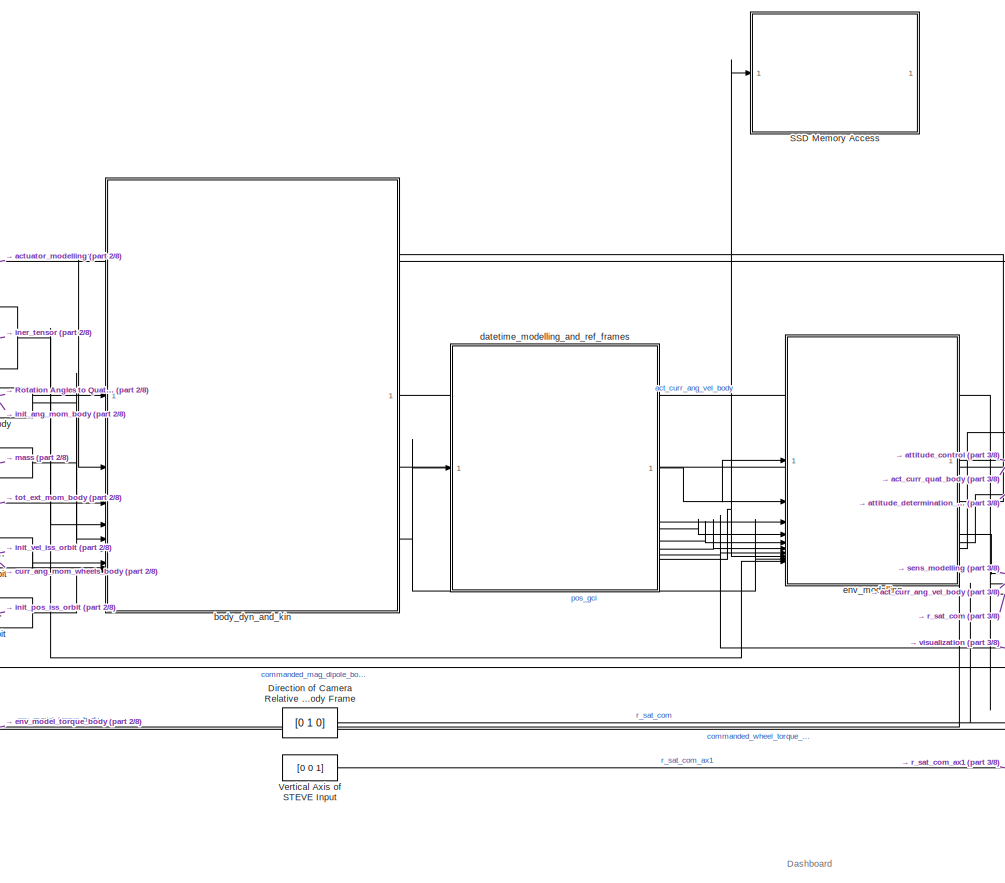
[diagram: root canvas - part 1/8, top center region]
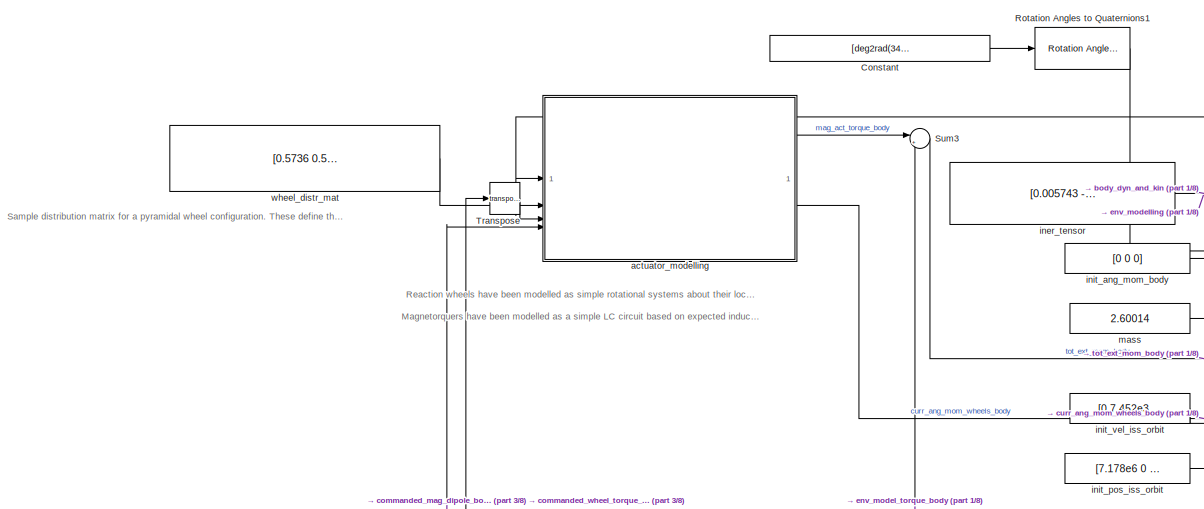
[diagram: root canvas - part 2/8, top left region]
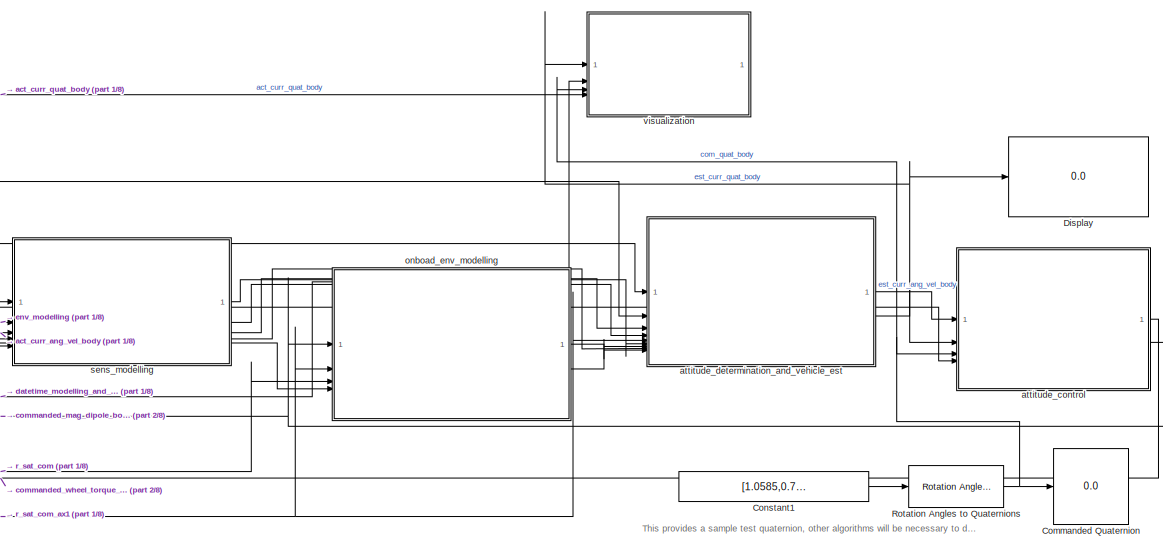
[diagram: root canvas - part 3/8, top right region]
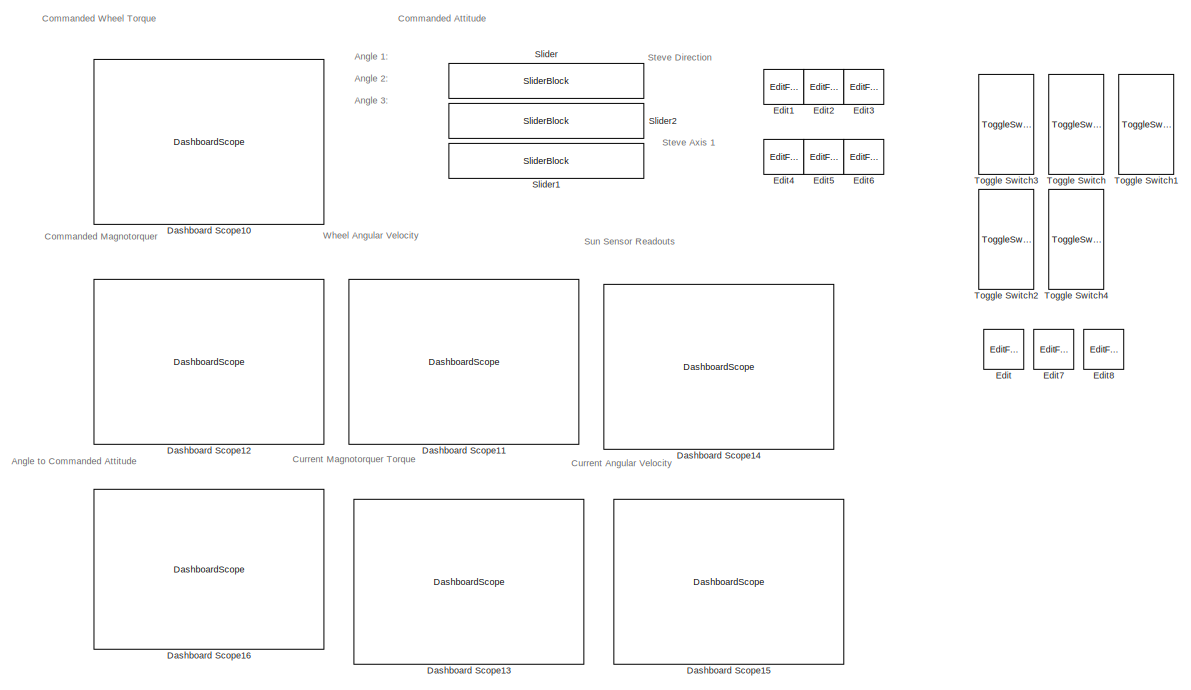
[diagram: root canvas - part 4/8, top right region]
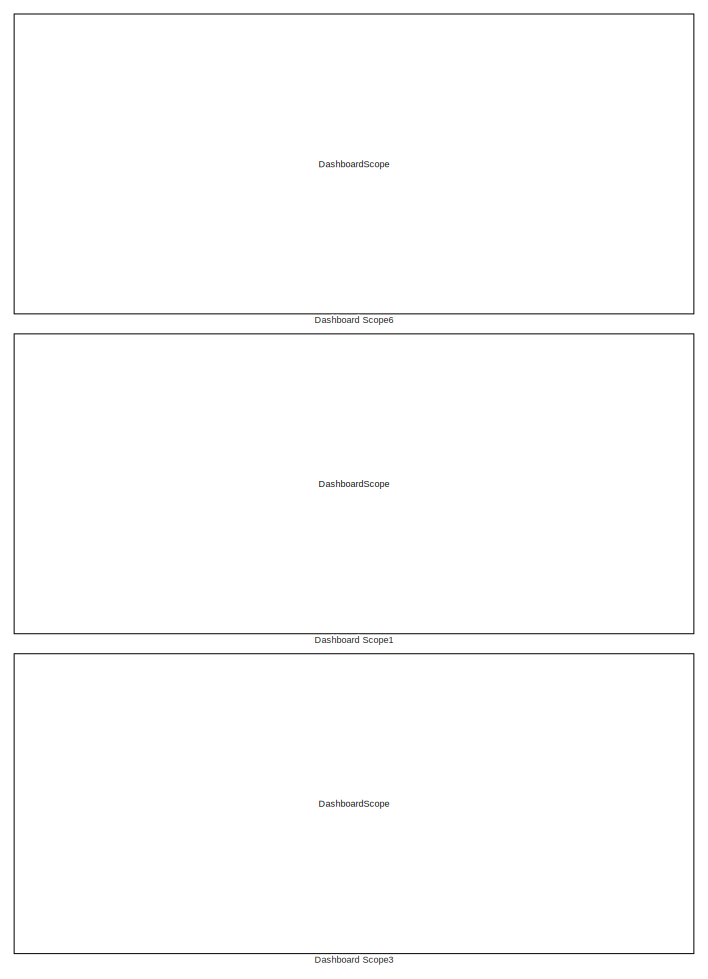
[diagram: root canvas - part 5/8, bottom left region]
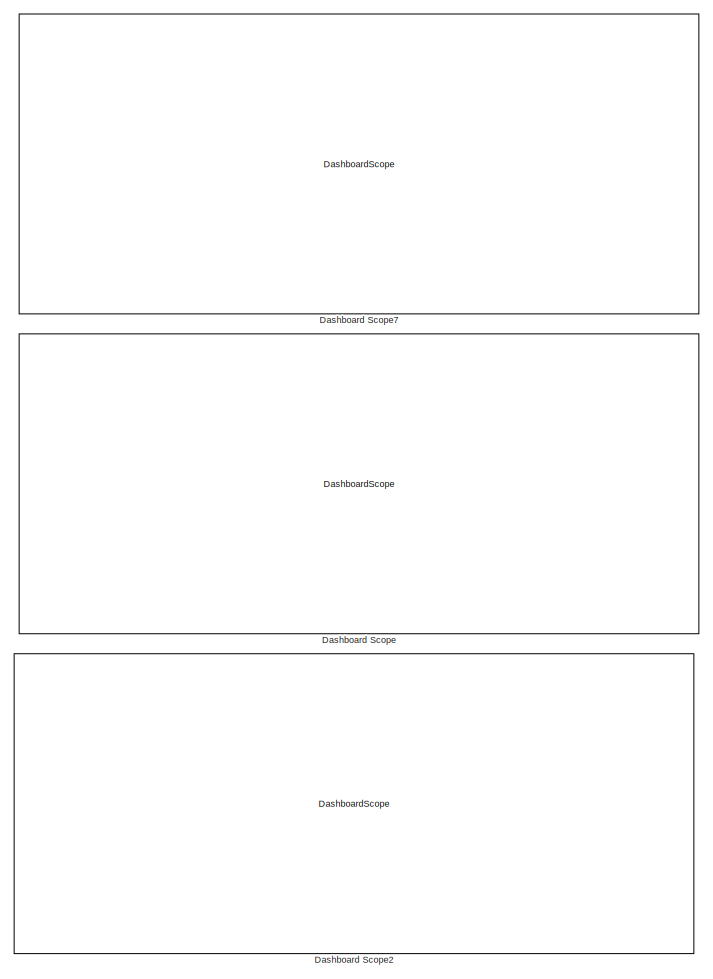
[diagram: root canvas - part 6/8, bottom center region]
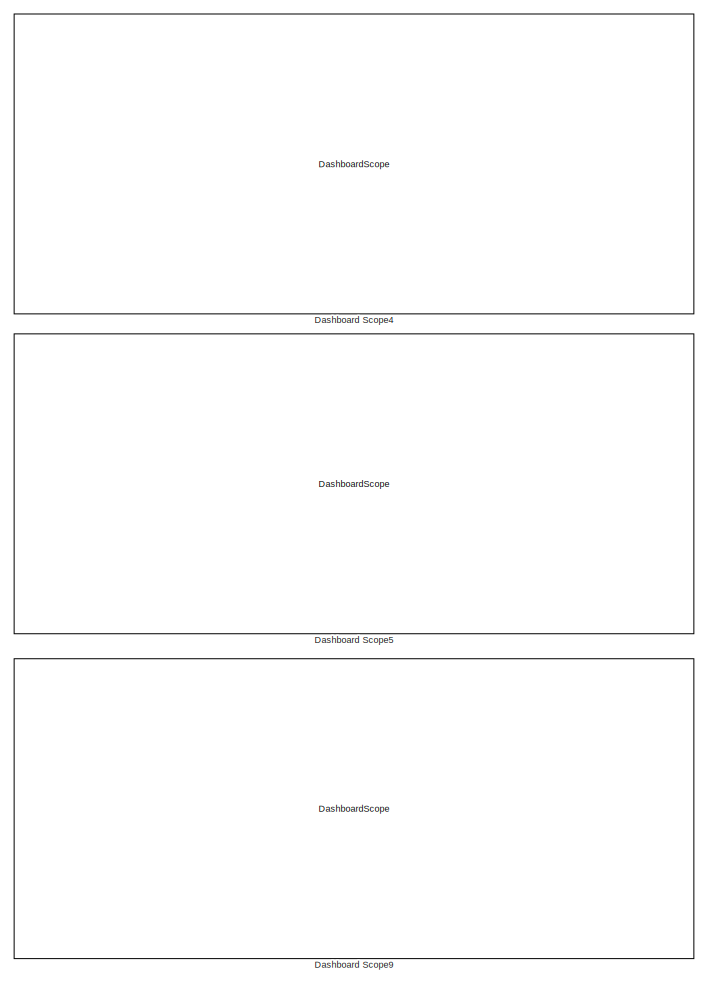
[diagram: root canvas - part 7/8, bottom right region]
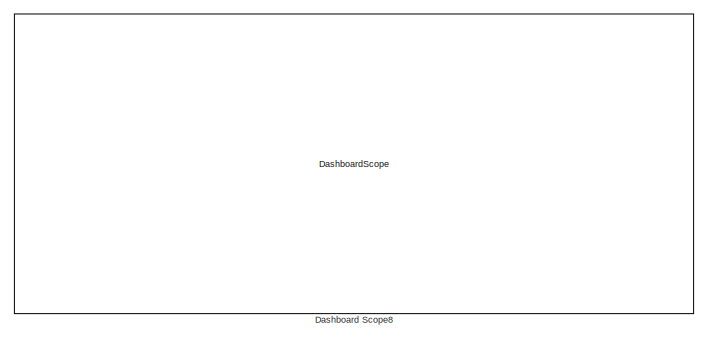
[diagram: root canvas - part 8/8, bottom right region]
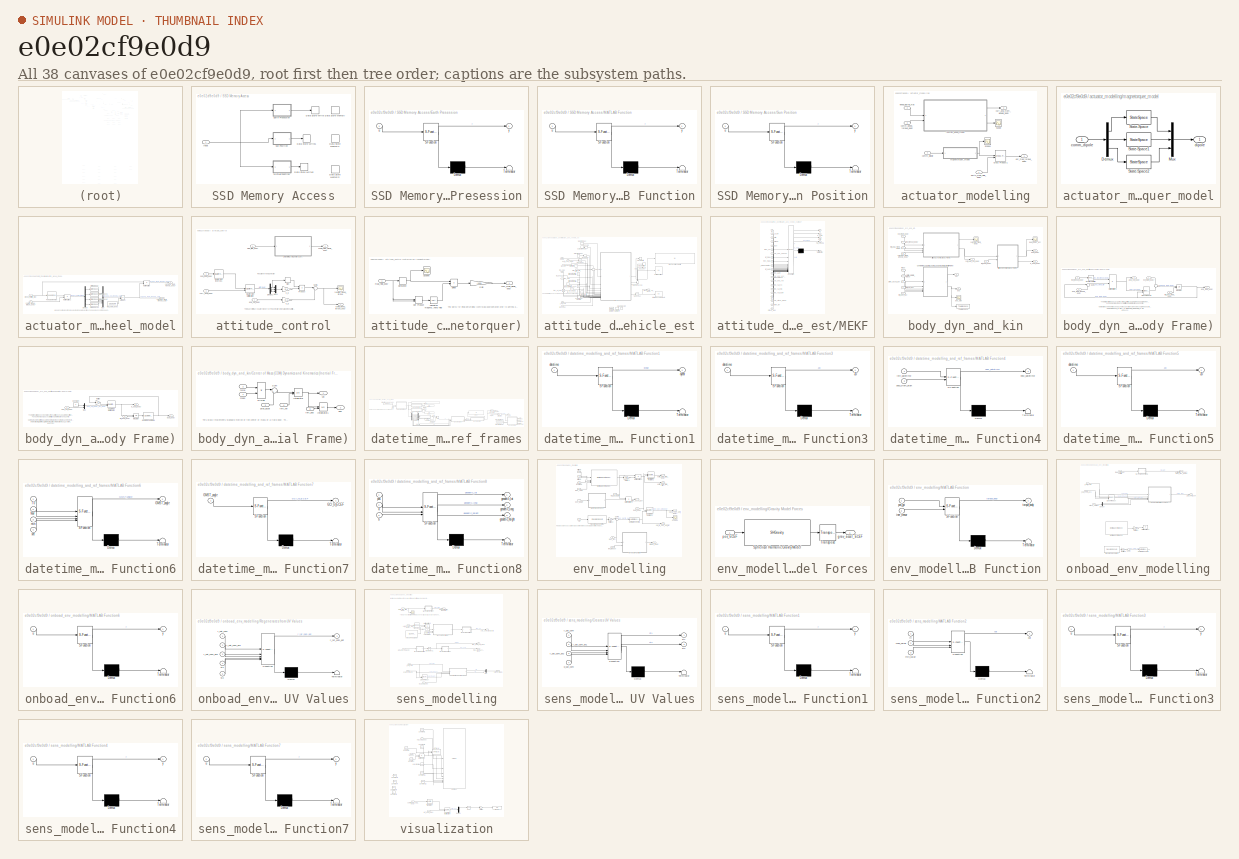
[diagram: thumbnail index - all 38 canvases of the model, root first then tree order]
MODEL slx_e0e02cf9e0d9
KIND model
CONFIG AbsTol = auto
CONFIG EnableMultiTasking = off
CONFIG FixedStep = 0.01
CONFIG MaxStep = 1
CONFIG MinStep = 0.01
CONFIG RelTol = 1e-3
CONFIG SampleTimeConstraint = Unconstrained
CONFIG SolverName = FixedStepAuto
CONFIG StartTime = 0.0
CONFIG StopTime = 7200
WORKSPACE source: mxarray member
WORKSPACE visSampleTime = 3
BLOCK [Display] Commanded Quaternion
  Decimation = 1
BLOCK [Constant] Constant
  Value = [deg2rad(34) deg2rad(-63) deg2rad(21)]
BLOCK [Constant] Constant1
  Value = [1.0585,0.7853981633974483,-0.808673205741627]
BLOCK [DashboardScope] Dashboard Scope
  Commented = on
BLOCK [DashboardScope] Dashboard Scope1
  Commented = on
BLOCK [DashboardScope] Dashboard Scope10
  NormalizeYAxis = on
  TicksPosition = Inside
  Ymin = 0
BLOCK [DashboardScope] Dashboard Scope11
  TicksPosition = Inside
BLOCK [DashboardScope] Dashboard Scope12
  TicksPosition = Inside
BLOCK [DashboardScope] Dashboard Scope13
  TicksPosition = Inside
BLOCK [DashboardScope] Dashboard Scope14
  TicksPosition = Inside
BLOCK [DashboardScope] Dashboard Scope15
  TicksPosition = Inside
BLOCK [DashboardScope] Dashboard Scope16
  NormalizeYAxis = on
  TicksPosition = Inside
  UpdateMode = Scroll
  Ymin = 0
BLOCK [DashboardScope] Dashboard Scope2
  Commented = on
BLOCK [DashboardScope] Dashboard Scope3
  Commented = on
BLOCK [DashboardScope] Dashboard Scope4
  Commented = on
BLOCK [DashboardScope] Dashboard Scope5
  Commented = on
BLOCK [DashboardScope] Dashboard Scope6
  Commented = on
BLOCK [DashboardScope] Dashboard Scope7
  Commented = on
BLOCK [DashboardScope] Dashboard Scope8
  Commented = on
BLOCK [DashboardScope] Dashboard Scope9
  Commented = on
BLOCK [Constant] Direction of Camera Relative to Body Frame
  Value = [0 1 0]
BLOCK [Display] Display
  Decimation = 1
BLOCK [EditField] Edit
  Alignment = Center
  LabelPosition = Hide
  ShowInitialText = on
BLOCK [EditField] Edit1
  Alignment = Center
  LabelPosition = Hide
  ShowInitialText = on
BLOCK [EditField] Edit2
  Alignment = Center
  LabelPosition = Hide
  ShowInitialText = on
BLOCK [EditField] Edit3
  Alignment = Center
  LabelPosition = Hide
  ShowInitialText = on
BLOCK [EditField] Edit4
  Alignment = Center
  LabelPosition = Hide
  ShowInitialText = on
BLOCK [EditField] Edit5
  Alignment = Center
  LabelPosition = Hide
  ShowInitialText = on
BLOCK [EditField] Edit6
  Alignment = Center
  LabelPosition = Hide
  ShowInitialText = on
BLOCK [EditField] Edit7
  Alignment = Center
  LabelPosition = Hide
  ShowInitialText = on
BLOCK [EditField] Edit8
  Alignment = Center
  LabelPosition = Hide
  ShowInitialText = on
BLOCK [Reference] Rotation Angles to Quaternions  REF=sharedtransform/Rotation Angles to Quaternions
  AttributesFormatString = Rotation Order: %<rotationOrder>
  LibrarySourceBlock = aerolibtransform2/Rotation Angles to Quaternions
  SourceBlock = sharedtransform/Rotation Angles to Quaternions
  SourceType = Ang2Quat
BLOCK [Reference] Rotation Angles to Quaternions1  REF=sharedtransform/Rotation Angles to Quaternions
  AttributesFormatString = Rotation Order: %<rotationOrder>
  LibrarySourceBlock = aerolibtransform2/Rotation Angles to Quaternions
  SourceBlock = sharedtransform/Rotation Angles to Quaternions
  SourceType = Ang2Quat
BLOCK [SubSystem] SSD Memory Access
BLOCK [DataStoreMemory] SSD Memory Access/Data Store Memory
  ShowAdditionalParam = off
  WriteAfterWriteMsg = warning
BLOCK [DataStoreMemory] SSD Memory Access/Data Store Memory1
  DataStoreName = B
  ShowAdditionalParam = off
  WriteAfterWriteMsg = warning
BLOCK [DataStoreMemory] SSD Memory Access/Data Store Memory2
  DataStoreName = C
  ShowAdditionalParam = off
  WriteAfterWriteMsg = warning
BLOCK [DataStoreWrite] SSD Memory Access/Data Store Write
  IndexOptions = Index vector (dialog)
  Indices = 1
  OutputSizes = 1
BLOCK [DataStoreWrite] SSD Memory Access/Data Store Write1
  DataStoreName = B
  IndexOptions = Index vector (dialog)
  Indices = 1
  OutputSizes = 1
BLOCK [DataStoreWrite] SSD Memory Access/Data Store Write2
  DataStoreName = C
  IndexOptions = Index vector (dialog)
  Indices = 1
  OutputSizes = 1
BLOCK [SubSystem] SSD Memory Access/Earth Presession
  ErrorFcn = Stateflow.Translate.translate
  LibrarySourceBlock = simulink/User-Defined\nFunctions/MATLAB Function
  PermitHierarchicalResolution = ExplicitOnly
  SFBlockType = MATLAB Function
  TreatAsAtomicUnit = on
BLOCK [Demux] SSD Memory Access/Earth Presession/ Demux 
  Outputs = 1
BLOCK [S-Function] SSD Memory Access/Earth Presession/ SFunction 
  EnableBusSupport = on
  FunctionName = sf_sfun
  PortCounts = [1 2]
  SFcnIsStateOwnerBlock = off
  SFunctionDeploymentMode = off
  Tag = Stateflow S-Function 5
BLOCK [Terminator] SSD Memory Access/Earth Presession/ Terminator 
BLOCK [Inport] SSD Memory Access/Earth Presession/u
BLOCK [Outport] SSD Memory Access/Earth Presession/y
BLOCK [Inport] SSD Memory Access/Input
BLOCK [SubSystem] SSD Memory Access/MATLAB Function
  ErrorFcn = Stateflow.Translate.translate
  LibrarySourceBlock = simulink/User-Defined\nFunctions/MATLAB Function
  PermitHierarchicalResolution = ExplicitOnly
  SFBlockType = MATLAB Function
  TreatAsAtomicUnit = on
BLOCK [Demux] SSD Memory Access/MATLAB Function/ Demux 
  Outputs = 1
BLOCK [S-Function] SSD Memory Access/MATLAB Function/ SFunction 
  EnableBusSupport = on
  FunctionName = sf_sfun
  PortCounts = [1 2]
  SFcnIsStateOwnerBlock = off
  SFunctionDeploymentMode = off
  Tag = Stateflow S-Function 20
BLOCK [Terminator] SSD Memory Access/MATLAB Function/ Terminator 
BLOCK [Inport] SSD Memory Access/MATLAB Function/u
BLOCK [Outport] SSD Memory Access/MATLAB Function/y
BLOCK [SubSystem] SSD Memory Access/Sun Position
  ErrorFcn = Stateflow.Translate.translate
  LibrarySourceBlock = simulink/User-Defined\nFunctions/MATLAB Function
  PermitHierarchicalResolution = ExplicitOnly
  SFBlockType = MATLAB Function
  TreatAsAtomicUnit = on
BLOCK [Demux] SSD Memory Access/Sun Position/ Demux 
  Outputs = 1
BLOCK [S-Function] SSD Memory Access/Sun Position/ SFunction 
  EnableBusSupport = on
  FunctionName = sf_sfun
  PortCounts = [1 2]
  SFcnIsStateOwnerBlock = off
  SFunctionDeploymentMode = off
  Tag = Stateflow S-Function 19
BLOCK [Terminator] SSD Memory Access/Sun Position/ Terminator 
BLOCK [Inport] SSD Memory Access/Sun Position/u
BLOCK [Outport] SSD Memory Access/Sun Position/y
BLOCK [SliderBlock] Slider
  LabelPosition = Hide
  ScaleMax = 3.1415
  ScaleMin = -3.1415
BLOCK [SliderBlock] Slider1
  LabelPosition = Hide
  ScaleMax = 3.1415
  ScaleMin = -3.1415
BLOCK [SliderBlock] Slider2
  LabelPosition = Hide
  ScaleMax = 3.1415
  ScaleMin = -3.1415
BLOCK [Sum] Sum3
  Inputs = |++
BLOCK [ToggleSwitchBlock] Toggle Switch
BLOCK [ToggleSwitchBlock] Toggle Switch1
BLOCK [ToggleSwitchBlock] Toggle Switch2
BLOCK [ToggleSwitchBlock] Toggle Switch3
BLOCK [ToggleSwitchBlock] Toggle Switch4
BLOCK [Math] Transpose
  Operator = transpose
BLOCK [Constant] Vertical Axis of STEVE Input
  Value = [0 0 1]
BLOCK [SubSystem] actuator_modelling
BLOCK [Reference] actuator_modelling/Cross Product1  REF=matrix_library/Cross Product
  SourceBlock = matrix_library/Cross Product
  SourceType = CrossProduct
BLOCK [Scope] actuator_modelling/Scope
  Floating = off
  NumInputPorts = 1
  ScopeSpecificationString = Simulink.scopes.TimeScopeBlockCfg('CurrentConfiguration', extmgr.ConfigurationSet(extmgr.Configuration('Core','General UI',true),extmgr.Configuration('Core','Source UI',true),extmgr.Configuration('Sources','WiredSimulink',true,'DataLoggingVariableName','ScopeData1'),extmgr.Configuration('Visuals','Time Domain',true,'SerializedDisplays',{struct('MinYLimReal','-0.02462','MaxYLimReal','0.02472','YLab...<+1606ch>
BLOCK [Scope] actuator_modelling/Scope1
  Floating = off
  NumInputPorts = 1
  ScopeSpecificationString = Simulink.scopes.TimeScopeBlockCfg('CurrentConfiguration', extmgr.ConfigurationSet(extmgr.Configuration('Core','General UI',true),extmgr.Configuration('Core','Source UI',true),extmgr.Configuration('Sources','WiredSimulink',true,'DataLoggingVariableName','ScopeData2'),extmgr.Configuration('Visuals','Time Domain',true,'SerializedDisplays',{struct('MinYLimReal','-1.00000','MaxYLimReal','1.00000','YLab...<+1455ch>
BLOCK [Inport] actuator_modelling/comm_dipole
  Port = 4
BLOCK [Inport] actuator_modelling/comm_wheel_torque_body
  Port = 3
BLOCK [Outport] actuator_modelling/curr_ang_mom_wheels_body
  Port = 2
BLOCK [Inport] actuator_modelling/earth_mag_field_body
BLOCK [Outport] actuator_modelling/ext_mag_torque_body
BLOCK [SubSystem] actuator_modelling/magnetorquer_model
BLOCK [Demux] actuator_modelling/magnetorquer_model/Demux
  Outputs = 3
BLOCK [Mux] actuator_modelling/magnetorquer_model/Mux
  DisplayOption = bar
  Inputs = 3
BLOCK [StateSpace] actuator_modelling/magnetorquer_model/State-Space
  A = -71.31
  B = 8
  C = 8.914
  D = 0
  InitialCondition = 0
BLOCK [StateSpace] actuator_modelling/magnetorquer_model/State-Space1
  A = -71.31
  B = 8
  C = 8.914
  D = 0
  InitialCondition = 0
BLOCK [StateSpace] actuator_modelling/magnetorquer_model/State-Space2
  A = -71.31
  B = 8
  C = 8.914
  D = 0
  InitialCondition = 0
BLOCK [Inport] actuator_modelling/magnetorquer_model/comm_dipole
BLOCK [Outport] actuator_modelling/magnetorquer_model/dipole
BLOCK [SubSystem] actuator_modelling/reaction_wheel_model
BLOCK [Demux] actuator_modelling/reaction_wheel_model/Demux
BLOCK [Product] actuator_modelling/reaction_wheel_model/Matrix Multiply
  Multiplication = Matrix(*)
BLOCK [Product] actuator_modelling/reaction_wheel_model/Matrix Multiply2
  Multiplication = Matrix(*)
BLOCK [Mux] actuator_modelling/reaction_wheel_model/Mux
  DisplayOption = bar
BLOCK [Product] actuator_modelling/reaction_wheel_model/Product
BLOCK [Reference] actuator_modelling/reaction_wheel_model/Pseudoinverse  REF=dspinverses/Pseudoinverse
  SourceBlock = dspinverses/Pseudoinverse
  SourceType = Pseudoinverse
BLOCK [StateSpace] actuator_modelling/reaction_wheel_model/State-Space
  A = -0.02216
  B = 512
  C = 962.5
  D = 0
  InitialCondition = 0
  ParameterTunability = Unconstrained
BLOCK [StateSpace] actuator_modelling/reaction_wheel_model/State-Space1
  A = -0.02216
  B = 512
  C = 962.5
  D = 0
  InitialCondition = 0
  ParameterTunability = Unconstrained
BLOCK [StateSpace] actuator_modelling/reaction_wheel_model/State-Space2
  A = -0.02216
  B = 512
  C = 962.5
  D = 0
  InitialCondition = 0
  ParameterTunability = Unconstrained
BLOCK [StateSpace] actuator_modelling/reaction_wheel_model/State-Space3
  A = -0.02216
  B = 512
  C = 962.5
  D = 0
  InitialCondition = 0
  ParameterTunability = Unconstrained
BLOCK [Inport] actuator_modelling/reaction_wheel_model/comm_wheel_torque_body
  Port = 2
BLOCK [Outport] actuator_modelling/reaction_wheel_model/curr_ang_mom_wheels_body
BLOCK [Outport] actuator_modelling/reaction_wheel_model/curr_ang_mom_wheels_spin
  Port = 2
BLOCK [Constant] actuator_modelling/reaction_wheel_model/moi_spin_axes
  Value = 2.0292e-6
BLOCK [Inport] actuator_modelling/reaction_wheel_model/wheel_distrib_mat
BLOCK [Inport] actuator_modelling/wheel_distrib_mat
  Port = 2
BLOCK [SubSystem] attitude_control
BLOCK [Demux] attitude_control/Demux1
BLOCK [SubSystem] attitude_control/Detumbling (Magnetorquer)
  Commented = on
BLOCK [Sqrt] attitude_control/Detumbling (Magnetorquer)/Calculates magntiude of magnetic field
BLOCK [Derivative] attitude_control/Detumbling (Magnetorquer)/Derivative
BLOCK [Product] attitude_control/Detumbling (Magnetorquer)/Divide
  Inputs = */
BLOCK [DotProduct] attitude_control/Detumbling (Magnetorquer)/Dot Product
  OutDataTypeStr = Inherit: Inherit via internal rule
BLOCK [Gain] attitude_control/Detumbling (Magnetorquer)/Gain
  Gain = -1000
BLOCK [Scope] attitude_control/Detumbling (Magnetorquer)/Scope6
  Floating = off
  NumInputPorts = 1
  ScopeSpecificationString = Simulink.scopes.TimeScopeBlockCfg('CurrentConfiguration', extmgr.ConfigurationSet(extmgr.Configuration('Core','General UI',true),extmgr.Configuration('Core','Source UI',true),extmgr.Configuration('Sources','WiredSimulink',true,'DataLoggingVariableName','ScopeData5'),extmgr.Configuration('Visuals','Time Domain',true,'SerializedDisplays',{struct('MinYLimReal','-0.0000003','MaxYLimReal','0.00000032',...<+1495ch>
BLOCK [Outport] attitude_control/Detumbling (Magnetorquer)/com_mag_dipole_body
BLOCK [Inport] attitude_control/Detumbling (Magnetorquer)/mag_field_body
BLOCK [Mux] attitude_control/Mux1
  DisplayOption = bar
  Inputs = 3
BLOCK [Product] attitude_control/Product
BLOCK [Reference] attitude_control/Quaternion Inverse1  REF=aerolibutil/Quaternion
Inverse
  SourceBlock = aerolibutil/Quaternion\nInverse
  SourceType = Quaternion Inverse
BLOCK [Reference] attitude_control/Quaternion Multiplication  REF=aerolibutil/Quaternion
Multiplication
  SourceBlock = aerolibutil/Quaternion\nMultiplication
  SourceType = Quaternion Multiplication
BLOCK [Signum] attitude_control/Sign
BLOCK [Sum] attitude_control/Sum6
  Inputs = |++
BLOCK [Inport] attitude_control/ang_vel_body
BLOCK [Inport] attitude_control/com_quat_body
  Port = 3
BLOCK [Outport] attitude_control/comm_mag_dipole_body
  Port = 2
BLOCK [Outport] attitude_control/comm_wheel_torque_body
BLOCK [Inport] attitude_control/curr_quat_body
  Port = 2
BLOCK [Gain] attitude_control/k_d
  Gain = 0.1
BLOCK [Gain] attitude_control/k_p
  Gain = 0.2
BLOCK [Inport] attitude_control/mag_field_body
  Port = 4
BLOCK [Scope] attitude_control/reaction_wheel_torque
  Floating = off
  NumInputPorts = 1
  ScopeSpecificationString = Simulink.scopes.TimeScopeBlockCfg('CurrentConfiguration', extmgr.ConfigurationSet(extmgr.Configuration('Core','General UI',true),extmgr.Configuration('Core','Source UI',true),extmgr.Configuration('Sources','WiredSimulink',true,'DataLoggingVariableName','ScopeData2'),extmgr.Configuration('Visuals','Time Domain',true,'SerializedDisplays',{struct('MinYLimReal','-0.1696','MaxYLimReal','0.11215','YLabe...<+1614ch>
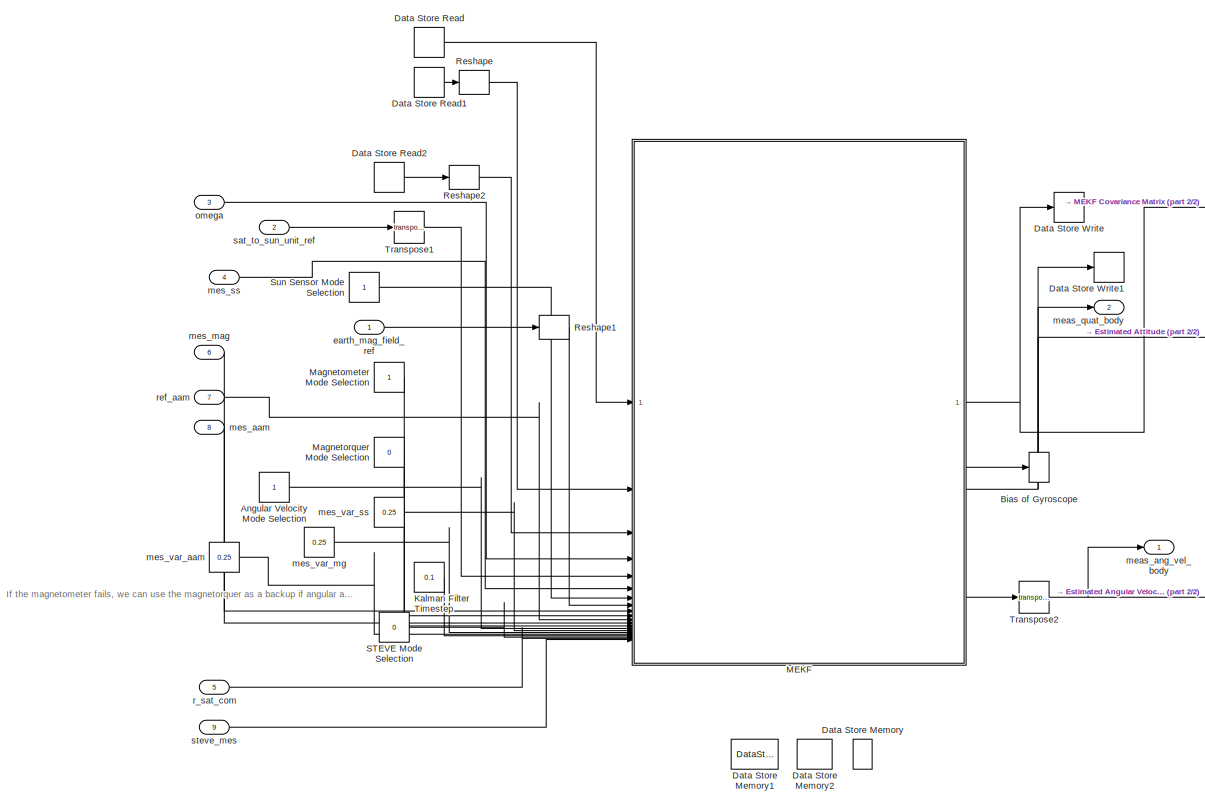
[diagram: attitude_determination_and_vehicle_est - part 1/2, center side, full height]
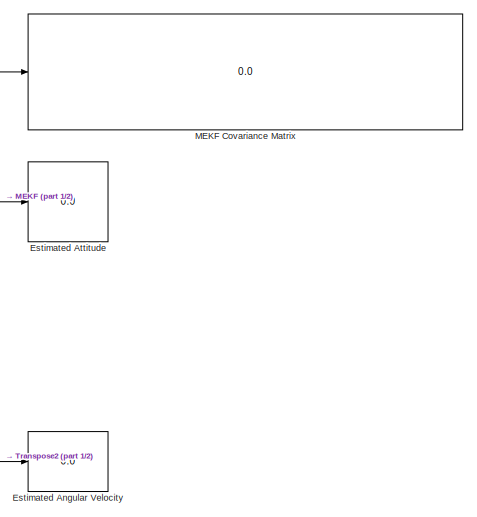
[diagram: attitude_determination_and_vehicle_est - part 2/2, middle right region]
BLOCK [SubSystem] attitude_determination_and_vehicle_est
BLOCK [Constant] attitude_determination_and_vehicle_est/Angular Velocity Mode Selection
BLOCK [DataStoreWrite] attitude_determination_and_vehicle_est/Bias of Gyroscope
  DataStoreName = beta
  IndexOptions = Index vector (dialog)
  Indices = 1
  OutputSizes = 1
BLOCK [DataStoreMemory] attitude_determination_and_vehicle_est/Data Store Memory
  DataStoreName = P
  InitialValue = diag([1*ones(1,3), 1*ones(1,3)])
  ShowAdditionalParam = off
  WriteAfterWriteMsg = warning
BLOCK [DataStoreMemory] attitude_determination_and_vehicle_est/Data Store Memory1
  DataStoreName = q_n2m
  Dimensions = [1,4]
  InitialValue = [1, 0, 0, 0]
  ShowAdditionalParam = off
  WriteAfterWriteMsg = warning
BLOCK [DataStoreMemory] attitude_determination_and_vehicle_est/Data Store Memory2
  DataStoreName = beta
  Dimensions = [3,1]
  InitialValue = [0;0;0]
  ShowAdditionalParam = off
  WriteAfterWriteMsg = warning
BLOCK [DataStoreRead] attitude_determination_and_vehicle_est/Data Store Read
  DataStoreName = P
  IndexOptions = Index vector (dialog)
  Indices = 1
  OutputSizes = 1
BLOCK [DataStoreRead] attitude_determination_and_vehicle_est/Data Store Read1
  DataStoreName = q_n2m
  IndexOptions = Index vector (dialog)
  Indices = 1
  OutputSizes = 1
BLOCK [DataStoreRead] attitude_determination_and_vehicle_est/Data Store Read2
  DataStoreName = beta
  IndexOptions = Index vector (dialog)
  Indices = 1
  OutputSizes = 1
BLOCK [DataStoreWrite] attitude_determination_and_vehicle_est/Data Store Write
  DataStoreName = P
  IndexOptions = Index vector (dialog)
  Indices = 1
  OutputSizes = 1
BLOCK [DataStoreWrite] attitude_determination_and_vehicle_est/Data Store Write1
  DataStoreName = q_n2m
  IndexOptions = Index vector (dialog)
  Indices = 1
  OutputSizes = 1
BLOCK [Display] attitude_determination_and_vehicle_est/Estimated Angular Velocity
  Decimation = 1
BLOCK [Display] attitude_determination_and_vehicle_est/Estimated Attitude
  Decimation = 1
BLOCK [Constant] attitude_determination_and_vehicle_est/Kalman Filter Timestep
  Value = 0.1
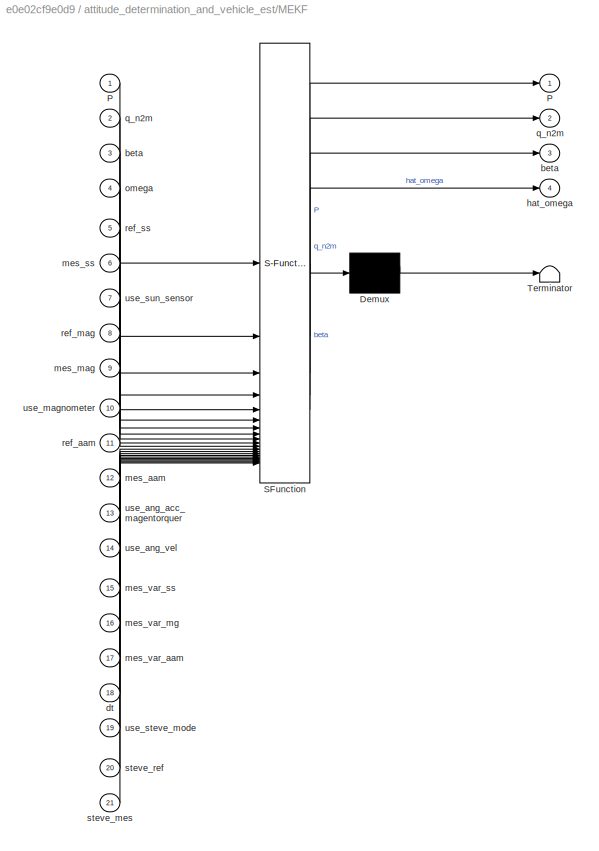
BLOCK [SubSystem] attitude_determination_and_vehicle_est/MEKF
  ErrorFcn = Stateflow.Translate.translate
  LibrarySourceBlock = simulink/User-Defined\nFunctions/MATLAB Function
  PermitHierarchicalResolution = ExplicitOnly
  SFBlockType = MATLAB Function
  TreatAsAtomicUnit = on
BLOCK [Display] attitude_determination_and_vehicle_est/MEKF Covariance Matrix
  Decimation = 1
BLOCK [Demux] attitude_determination_and_vehicle_est/MEKF/ Demux 
  Outputs = 1
BLOCK [S-Function] attitude_determination_and_vehicle_est/MEKF/ SFunction 
  EnableBusSupport = on
  FunctionName = sf_sfun
  PortCounts = [21 5]
  SFcnIsStateOwnerBlock = off
  SFunctionDeploymentMode = off
  Tag = Stateflow S-Function 2
BLOCK [Terminator] attitude_determination_and_vehicle_est/MEKF/ Terminator 
BLOCK [Outport] attitude_determination_and_vehicle_est/MEKF/P
BLOCK [Inport] attitude_determination_and_vehicle_est/MEKF/P 
BLOCK [Outport] attitude_determination_and_vehicle_est/MEKF/beta
  Port = 3
BLOCK [Inport] attitude_determination_and_vehicle_est/MEKF/beta 
  Port = 3
BLOCK [Inport] attitude_determination_and_vehicle_est/MEKF/dt
  Port = 18
BLOCK [Outport] attitude_determination_and_vehicle_est/MEKF/hat_omega
  Port = 4
BLOCK [Inport] attitude_determination_and_vehicle_est/MEKF/mes_aam
  Port = 12
BLOCK [Inport] attitude_determination_and_vehicle_est/MEKF/mes_mag
  Port = 9
BLOCK [Inport] attitude_determination_and_vehicle_est/MEKF/mes_ss
  Port = 6
BLOCK [Inport] attitude_determination_and_vehicle_est/MEKF/mes_var_aam
  Port = 17
BLOCK [Inport] attitude_determination_and_vehicle_est/MEKF/mes_var_mg
  Port = 16
BLOCK [Inport] attitude_determination_and_vehicle_est/MEKF/mes_var_ss
  Port = 15
BLOCK [Inport] attitude_determination_and_vehicle_est/MEKF/omega
  Port = 4
BLOCK [Outport] attitude_determination_and_vehicle_est/MEKF/q_n2m
  Port = 2
BLOCK [Inport] attitude_determination_and_vehicle_est/MEKF/q_n2m 
  Port = 2
BLOCK [Inport] attitude_determination_and_vehicle_est/MEKF/ref_aam
  Port = 11
BLOCK [Inport] attitude_determination_and_vehicle_est/MEKF/ref_mag
  Port = 8
BLOCK [Inport] attitude_determination_and_vehicle_est/MEKF/ref_ss
  Port = 5
BLOCK [Inport] attitude_determination_and_vehicle_est/MEKF/steve_mes
  Port = 21
BLOCK [Inport] attitude_determination_and_vehicle_est/MEKF/steve_ref
  Port = 20
BLOCK [Inport] attitude_determination_and_vehicle_est/MEKF/use_ang_acc_magentorquer
  Port = 13
BLOCK [Inport] attitude_determination_and_vehicle_est/MEKF/use_ang_vel
  Port = 14
BLOCK [Inport] attitude_determination_and_vehicle_est/MEKF/use_magnometer
  Port = 10
BLOCK [Inport] attitude_determination_and_vehicle_est/MEKF/use_steve_mode
  Port = 19
BLOCK [Inport] attitude_determination_and_vehicle_est/MEKF/use_sun_sensor
  Port = 7
BLOCK [Constant] attitude_determination_and_vehicle_est/Magnetometer Mode Selection
BLOCK [Constant] attitude_determination_and_vehicle_est/Magnetorquer Mode Selection
  Value = 0
BLOCK [Reshape] attitude_determination_and_vehicle_est/Reshape
  OutputDimensionality = Row vector (2-D)
BLOCK [Reshape] attitude_determination_and_vehicle_est/Reshape1
  OutputDimensionality = Row vector (2-D)
BLOCK [Reshape] attitude_determination_and_vehicle_est/Reshape2
  OutputDimensionality = Column vector (2-D)
BLOCK [Constant] attitude_determination_and_vehicle_est/STEVE Mode Selection
  Value = 0
BLOCK [Constant] attitude_determination_and_vehicle_est/Sun Sensor Mode Selection
BLOCK [Math] attitude_determination_and_vehicle_est/Transpose1
  Operator = transpose
BLOCK [Math] attitude_determination_and_vehicle_est/Transpose2
  Operator = transpose
BLOCK [Inport] attitude_determination_and_vehicle_est/earth_mag_field_ref
BLOCK [Outport] attitude_determination_and_vehicle_est/meas_ang_vel_body
BLOCK [Outport] attitude_determination_and_vehicle_est/meas_quat_body
  Port = 2
BLOCK [Inport] attitude_determination_and_vehicle_est/mes_aam
  Port = 8
BLOCK [Inport] attitude_determination_and_vehicle_est/mes_mag
  Port = 6
BLOCK [Inport] attitude_determination_and_vehicle_est/mes_ss
  Port = 4
BLOCK [Constant] attitude_determination_and_vehicle_est/mes_var_aam
  Value = 0.25
BLOCK [Constant] attitude_determination_and_vehicle_est/mes_var_mg
  Value = 0.25
BLOCK [Constant] attitude_determination_and_vehicle_est/mes_var_ss
  Value = 0.25
BLOCK [Inport] attitude_determination_and_vehicle_est/omega
  Port = 3
BLOCK [Inport] attitude_determination_and_vehicle_est/r_sat_com
  Port = 5
BLOCK [Inport] attitude_determination_and_vehicle_est/ref_aam
  Port = 7
BLOCK [Inport] attitude_determination_and_vehicle_est/sat_to_sun_unit_ref
  Port = 2
BLOCK [Inport] attitude_determination_and_vehicle_est/steve_mes
  Port = 9
BLOCK [SubSystem] body_dyn_and_kin
BLOCK [SubSystem] body_dyn_and_kin/Attitude Dynamics (Body Frame)
BLOCK [Reference] body_dyn_and_kin/Attitude Dynamics (Body Frame)/Cross Product1  REF=matrix_library/Cross Product
  SourceBlock = matrix_library/Cross Product
  SourceType = CrossProduct
BLOCK [Integrator] body_dyn_and_kin/Attitude Dynamics (Body Frame)/Integrator
  InitialConditionSource = external
BLOCK [Reference] body_dyn_and_kin/Attitude Dynamics (Body Frame)/Invert 3x3 Matrix1  REF=aerolibutil/Invert 
3x3 Matrix
  SourceBlock = aerolibutil/Invert \n3x3 Matrix
  SourceType = Invert 3x3 Matrix
BLOCK [Product] body_dyn_and_kin/Attitude Dynamics (Body Frame)/Matrix Multiply1
  Multiplication = Matrix(*)
BLOCK [Sum] body_dyn_and_kin/Attitude Dynamics (Body Frame)/Sum1
  Inputs = +-
BLOCK [Sum] body_dyn_and_kin/Attitude Dynamics (Body Frame)/Sum2
  Inputs = |+-
BLOCK [Outport] body_dyn_and_kin/Attitude Dynamics (Body Frame)/ang_mom_body
BLOCK [Inport] body_dyn_and_kin/Attitude Dynamics (Body Frame)/ang_mom_wheels_body
  Port = 4
BLOCK [Outport] body_dyn_and_kin/Attitude Dynamics (Body Frame)/ang_vel_body
  Port = 2
BLOCK [Inport] body_dyn_and_kin/Attitude Dynamics (Body Frame)/ext_mom_body
BLOCK [Inport] body_dyn_and_kin/Attitude Dynamics (Body Frame)/iner_tensor_body
  Port = 2
BLOCK [Inport] body_dyn_and_kin/Attitude Dynamics (Body Frame)/init_ang_mom_body
  Port = 3
BLOCK [SubSystem] body_dyn_and_kin/Attitude Kinematics (Body Frame)
BLOCK [Constant] body_dyn_and_kin/Attitude Kinematics (Body Frame)/Constant
  Value = 0
BLOCK [Integrator] body_dyn_and_kin/Attitude Kinematics (Body Frame)/Integrator
  InitialConditionSource = external
BLOCK [Gain] body_dyn_and_kin/Attitude Kinematics (Body Frame)/Multiply
  Gain = 0.5
BLOCK [Mux] body_dyn_and_kin/Attitude Kinematics (Body Frame)/Mux
  DisplayOption = bar
  Inputs = 2
BLOCK [Reference] body_dyn_and_kin/Attitude Kinematics (Body Frame)/Quaternion Multiplication  REF=aerolibutil/Quaternion
Multiplication
  SourceBlock = aerolibutil/Quaternion\nMultiplication
  SourceType = Quaternion Multiplication
BLOCK [Reference] body_dyn_and_kin/Attitude Kinematics (Body Frame)/Quaternion Normalize  REF=sharedutil/Quaternion
Normalize
  SourceBlock = sharedutil/Quaternion\nNormalize
  SourceType = Quaternion Normalize
BLOCK [Inport] body_dyn_and_kin/Attitude Kinematics (Body Frame)/ang_vel_body
BLOCK [Outport] body_dyn_and_kin/Attitude Kinematics (Body Frame)/d_quat_body
  Port = 2
BLOCK [Inport] body_dyn_and_kin/Attitude Kinematics (Body Frame)/init_quat_body
  Port = 2
BLOCK [Outport] body_dyn_and_kin/Attitude Kinematics (Body Frame)/quat_body
BLOCK [SubSystem] body_dyn_and_kin/Center of Mass (COM) Dynamics and Kinematics (Inertial Frame)
BLOCK [Product] body_dyn_and_kin/Center of Mass (COM) Dynamics and Kinematics (Inertial Frame)/Divide
  Inputs = */
BLOCK [Integrator] body_dyn_and_kin/Center of Mass (COM) Dynamics and Kinematics (Inertial Frame)/Integrator
  InitialConditionSource = external
BLOCK [Integrator] body_dyn_and_kin/Center of Mass (COM) Dynamics and Kinematics (Inertial Frame)/Integrator1
  InitialConditionSource = external
BLOCK [Sum] body_dyn_and_kin/Center of Mass (COM) Dynamics and Kinematics (Inertial Frame)/Sum
  Inputs = |++
BLOCK [Inport] body_dyn_and_kin/Center of Mass (COM) Dynamics and Kinematics (Inertial Frame)/force
  Port = 2
BLOCK [Inport] body_dyn_and_kin/Center of Mass (COM) Dynamics and Kinematics (Inertial Frame)/grav_accel
  Port = 3
BLOCK [Inport] body_dyn_and_kin/Center of Mass (COM) Dynamics and Kinematics (Inertial Frame)/init_pos
  Port = 5
BLOCK [Inport] body_dyn_and_kin/Center of Mass (COM) Dynamics and Kinematics (Inertial Frame)/init_vel
  Port = 4
BLOCK [Inport] body_dyn_and_kin/Center of Mass (COM) Dynamics and Kinematics (Inertial Frame)/mass
BLOCK [Outport] body_dyn_and_kin/Center of Mass (COM) Dynamics and Kinematics (Inertial Frame)/pos
  Port = 2
BLOCK [Outport] body_dyn_and_kin/Center of Mass (COM) Dynamics and Kinematics (Inertial Frame)/vel
BLOCK [ToWorkspace] body_dyn_and_kin/To Workspace
  FixptAsFi = on
  MaxDataPoints = inf
  SampleTime = -1
  VariableName = pos
BLOCK [Scope] body_dyn_and_kin/curr_ang_mom_body
  Floating = off
  NumInputPorts = 1
  ScopeSpecificationString = Simulink.scopes.TimeScopeBlockCfg('CurrentConfiguration', extmgr.ConfigurationSet(extmgr.Configuration('Core','General UI',true),extmgr.Configuration('Core','Source UI',true),extmgr.Configuration('Sources','WiredSimulink',true,'DataLoggingVariableName','ScopeData1'),extmgr.Configuration('Visuals','Time Domain',true,'SerializedDisplays',{struct('MinYLimReal','-0.00017','MaxYLimReal','0.00014','YLab...<+1479ch>
BLOCK [Inport] body_dyn_and_kin/curr_ang_mom_wheels_body
  Port = 8
BLOCK [Outport] body_dyn_and_kin/curr_ang_vel_body
BLOCK [Outport] body_dyn_and_kin/d_quat_body
  Port = 3
BLOCK [Inport] body_dyn_and_kin/ext_mom_body
  Port = 3
BLOCK [Inport] body_dyn_and_kin/grav_accel_gci
  Port = 2
BLOCK [Inport] body_dyn_and_kin/iner_tensor_body
  Port = 4
BLOCK [Inport] body_dyn_and_kin/init_ang_mom_body
  Port = 5
BLOCK [Inport] body_dyn_and_kin/init_pos_gci
  Port = 10
BLOCK [Inport] body_dyn_and_kin/init_quat_body
BLOCK [Inport] body_dyn_and_kin/init_vel_gci
  Port = 9
BLOCK [Inport] body_dyn_and_kin/mass
  Port = 6
BLOCK [Inport] body_dyn_and_kin/orbital_disturb_forces
  Port = 7
BLOCK [Outport] body_dyn_and_kin/pos
  Port = 5
BLOCK [Scope] body_dyn_and_kin/pos_plot
  Floating = off
  NumInputPorts = 1
  ScopeSpecificationString = Simulink.scopes.TimeScopeBlockCfg('CurrentConfiguration', extmgr.ConfigurationSet(extmgr.Configuration('Core','General UI',true),extmgr.Configuration('Core','Source UI',true),extmgr.Configuration('Sources','WiredSimulink',true,'DataLoggingVariableName','ScopeData1'),extmgr.Configuration('Visuals','Time Domain',true,'SerializedDisplays',{struct('MinYLimReal','-897250.58685','MaxYLimReal','8075250.0...<+1462ch>
BLOCK [Outport] body_dyn_and_kin/quat_body
  Port = 2
BLOCK [Scope] body_dyn_and_kin/quat_body_gci
  Floating = off
  NumInputPorts = 1
  ScopeSpecificationString = Simulink.scopes.TimeScopeBlockCfg('CurrentConfiguration', extmgr.ConfigurationSet(extmgr.Configuration('Core','General UI',true),extmgr.Configuration('Core','Source UI',true),extmgr.Configuration('Sources','WiredSimulink',true,'DataLoggingVariableName','ScopeData1'),extmgr.Configuration('Visuals','Time Domain',true,'SerializedDisplays',{struct('MinYLimReal','-0.52819','MaxYLimReal','1.1698','YLabe...<+1555ch>
BLOCK [Outport] body_dyn_and_kin/vel
  Port = 4
BLOCK [SubSystem] datetime_modelling_and_ref_frames
BLOCK [Clock] datetime_modelling_and_ref_frames/Clock
BLOCK [Constant] datetime_modelling_and_ref_frames/Constant1
  Value = 0
BLOCK [Constant] datetime_modelling_and_ref_frames/Constant13
  Value = 36525
BLOCK [Constant] datetime_modelling_and_ref_frames/Constant2
  Value = 0
BLOCK [Constant] datetime_modelling_and_ref_frames/Constant3
  Value = 0
BLOCK [Constant] datetime_modelling_and_ref_frames/Constant6
  Value = 2451545
BLOCK [Reference] datetime_modelling_and_ref_frames/Degrees to Radians  REF=simulink_extras/Transformations/Degrees to
Radians
  SourceBlock = simulink_extras/Transformations/Degrees to\nRadians
  SourceType = DegreesToRadians
BLOCK [Demux] datetime_modelling_and_ref_frames/Demux
  Outputs = 6
BLOCK [Display] datetime_modelling_and_ref_frames/Display2
  Decimation = 1
  Format = long
BLOCK [Display] datetime_modelling_and_ref_frames/Display3
  Decimation = 1
BLOCK [Display] datetime_modelling_and_ref_frames/Display5
  Decimation = 1
  Format = long
BLOCK [Display] datetime_modelling_and_ref_frames/Display6
  Decimation = 1
BLOCK [Display] datetime_modelling_and_ref_frames/Display7
  Decimation = 1
BLOCK [Product] datetime_modelling_and_ref_frames/Divide
  Inputs = */
BLOCK [Constant] datetime_modelling_and_ref_frames/Earth semimajor (WGS-84)
  Value = 6.378137e6
BLOCK [Constant] datetime_modelling_and_ref_frames/Earth semiminor (WGS-84)
  Value = 6.3567523142e6
BLOCK [Outport] datetime_modelling_and_ref_frames/GCI_to_ECEF
  Port = 2
BLOCK [Constant] datetime_modelling_and_ref_frames/Initial Datetime 2020-03-17 23:48:32
  Value = [2020 3 17 23 48 32]
BLOCK [Reference] datetime_modelling_and_ref_frames/Invert 3x3 Matrix1  REF=aerolibutil/Invert 
3x3 Matrix
  SourceBlock = aerolibutil/Invert \n3x3 Matrix
  SourceType = Invert 3x3 Matrix
BLOCK [Outport] datetime_modelling_and_ref_frames/JD
  Port = 7
BLOCK [SubSystem] datetime_modelling_and_ref_frames/MATLAB Function1
  ErrorFcn = Stateflow.Translate.translate
  PermitHierarchicalResolution = ExplicitOnly
  SFBlockType = MATLAB Function
  TreatAsAtomicUnit = on
BLOCK [Demux] datetime_modelling_and_ref_frames/MATLAB Function1/ Demux 
  Outputs = 1
BLOCK [S-Function] datetime_modelling_and_ref_frames/MATLAB Function1/ SFunction 
  EnableBusSupport = on
  FunctionName = sf_sfun
  PortCounts = [1 2]
  SFcnIsStateOwnerBlock = off
  SFunctionDeploymentMode = off
  Tag = Stateflow S-Function 6
BLOCK [Terminator] datetime_modelling_and_ref_frames/MATLAB Function1/ Terminator 
BLOCK [Inport] datetime_modelling_and_ref_frames/MATLAB Function1/datetime
BLOCK [Outport] datetime_modelling_and_ref_frames/MATLAB Function1/dyear
BLOCK [SubSystem] datetime_modelling_and_ref_frames/MATLAB Function3
  ErrorFcn = Stateflow.Translate.translate
  PermitHierarchicalResolution = ExplicitOnly
  SFBlockType = MATLAB Function
  TreatAsAtomicUnit = on
BLOCK [Demux] datetime_modelling_and_ref_frames/MATLAB Function3/ Demux 
  Outputs = 1
BLOCK [S-Function] datetime_modelling_and_ref_frames/MATLAB Function3/ SFunction 
  EnableBusSupport = on
  FunctionName = sf_sfun
  PortCounts = [1 2]
  SFcnIsStateOwnerBlock = off
  SFunctionDeploymentMode = off
  Tag = Stateflow S-Function 9
BLOCK [Terminator] datetime_modelling_and_ref_frames/MATLAB Function3/ Terminator 
BLOCK [Outport] datetime_modelling_and_ref_frames/MATLAB Function3/JD
BLOCK [Inport] datetime_modelling_and_ref_frames/MATLAB Function3/datetime
BLOCK [SubSystem] datetime_modelling_and_ref_frames/MATLAB Function4
  ErrorFcn = Stateflow.Translate.translate
  PermitHierarchicalResolution = ExplicitOnly
  SFBlockType = MATLAB Function
  TreatAsAtomicUnit = on
BLOCK [Demux] datetime_modelling_and_ref_frames/MATLAB Function4/ Demux 
  Outputs = 1
BLOCK [S-Function] datetime_modelling_and_ref_frames/MATLAB Function4/ SFunction 
  EnableBusSupport = on
  FunctionName = sf_sfun
  PortCounts = [2 2]
  SFcnIsStateOwnerBlock = off
  SFunctionDeploymentMode = off
  Tag = Stateflow S-Function 10
BLOCK [Terminator] datetime_modelling_and_ref_frames/MATLAB Function4/ Terminator 
BLOCK [Inport] datetime_modelling_and_ref_frames/MATLAB Function4/init_datetime
BLOCK [Outport] datetime_modelling_and_ref_frames/MATLAB Function4/new_datetime
BLOCK [Inport] datetime_modelling_and_ref_frames/MATLAB Function4/secs_from_start
  Port = 2
BLOCK [SubSystem] datetime_modelling_and_ref_frames/MATLAB Function5
  ErrorFcn = Stateflow.Translate.translate
  PermitHierarchicalResolution = ExplicitOnly
  SFBlockType = MATLAB Function
  TreatAsAtomicUnit = on
BLOCK [Demux] datetime_modelling_and_ref_frames/MATLAB Function5/ Demux 
  Outputs = 1
BLOCK [S-Function] datetime_modelling_and_ref_frames/MATLAB Function5/ SFunction 
  EnableBusSupport = on
  FunctionName = sf_sfun
  PortCounts = [1 2]
  SFcnIsStateOwnerBlock = off
  SFunctionDeploymentMode = off
  Tag = Stateflow S-Function 11
BLOCK [Terminator] datetime_modelling_and_ref_frames/MATLAB Function5/ Terminator 
BLOCK [Outport] datetime_modelling_and_ref_frames/MATLAB Function5/JD
BLOCK [Inport] datetime_modelling_and_ref_frames/MATLAB Function5/datetime
BLOCK [SubSystem] datetime_modelling_and_ref_frames/MATLAB Function6
  ErrorFcn = Stateflow.Translate.translate
  PermitHierarchicalResolution = ExplicitOnly
  SFBlockType = MATLAB Function
  TreatAsAtomicUnit = on
BLOCK [Demux] datetime_modelling_and_ref_frames/MATLAB Function6/ Demux 
  Outputs = 1
BLOCK [S-Function] datetime_modelling_and_ref_frames/MATLAB Function6/ SFunction 
  EnableBusSupport = on
  FunctionName = sf_sfun
  PortCounts = [4 2]
  SFcnIsStateOwnerBlock = off
  SFunctionDeploymentMode = off
  Tag = Stateflow S-Function 12
BLOCK [Terminator] datetime_modelling_and_ref_frames/MATLAB Function6/ Terminator 
BLOCK [Outport] datetime_modelling_and_ref_frames/MATLAB Function6/GMST_angle
BLOCK [Inport] datetime_modelling_and_ref_frames/MATLAB Function6/T0
BLOCK [Inport] datetime_modelling_and_ref_frames/MATLAB Function6/hour
  Port = 2
BLOCK [Inport] datetime_modelling_and_ref_frames/MATLAB Function6/min
  Port = 3
BLOCK [Inport] datetime_modelling_and_ref_frames/MATLAB Function6/sec
  Port = 4
BLOCK [SubSystem] datetime_modelling_and_ref_frames/MATLAB Function7
  ErrorFcn = Stateflow.Translate.translate
  PermitHierarchicalResolution = ExplicitOnly
  SFBlockType = MATLAB Function
  TreatAsAtomicUnit = on
BLOCK [Demux] datetime_modelling_and_ref_frames/MATLAB Function7/ Demux 
  Outputs = 1
BLOCK [S-Function] datetime_modelling_and_ref_frames/MATLAB Function7/ SFunction 
  EnableBusSupport = on
  FunctionName = sf_sfun
  PortCounts = [1 2]
  SFcnIsStateOwnerBlock = off
  SFunctionDeploymentMode = off
  Tag = Stateflow S-Function 13
BLOCK [Terminator] datetime_modelling_and_ref_frames/MATLAB Function7/ Terminator 
BLOCK [Outport] datetime_modelling_and_ref_frames/MATLAB Function7/GCI_to_ECEF
BLOCK [Inport] datetime_modelling_and_ref_frames/MATLAB Function7/GMST_angle
BLOCK [SubSystem] datetime_modelling_and_ref_frames/MATLAB Function8
  ErrorFcn = Stateflow.Translate.translate
  PermitHierarchicalResolution = ExplicitOnly
  SFBlockType = MATLAB Function
  TreatAsAtomicUnit = on
BLOCK [Demux] datetime_modelling_and_ref_frames/MATLAB Function8/ Demux 
  Outputs = 1
BLOCK [S-Function] datetime_modelling_and_ref_frames/MATLAB Function8/ SFunction 
  EnableBusSupport = on
  FunctionName = sf_sfun
  PortCounts = [3 4]
  SFcnIsStateOwnerBlock = off
  SFunctionDeploymentMode = off
  Tag = Stateflow S-Function 14
BLOCK [Terminator] datetime_modelling_and_ref_frames/MATLAB Function8/ Terminator 
BLOCK [Inport] datetime_modelling_and_ref_frames/MATLAB Function8/a
  Port = 2
BLOCK [Inport] datetime_modelling_and_ref_frames/MATLAB Function8/b
  Port = 3
BLOCK [Outport] datetime_modelling_and_ref_frames/MATLAB Function8/geodetic_height
  Port = 3
BLOCK [Outport] datetime_modelling_and_ref_frames/MATLAB Function8/geodetic_lat
BLOCK [Outport] datetime_modelling_and_ref_frames/MATLAB Function8/geodetic_long
  Port = 2
BLOCK [Inport] datetime_modelling_and_ref_frames/MATLAB Function8/pos
BLOCK [Product] datetime_modelling_and_ref_frames/Matrix Multiply2
  Multiplication = Matrix(*)
BLOCK [Mux] datetime_modelling_and_ref_frames/Mux
  DisplayOption = bar
  Inputs = 6
BLOCK [Sum] datetime_modelling_and_ref_frames/Sum8
  Inputs = |+-
BLOCK [Outport] datetime_modelling_and_ref_frames/dyear
  Port = 5
BLOCK [Inport] datetime_modelling_and_ref_frames/gci_pos
BLOCK [Outport] datetime_modelling_and_ref_frames/geodetic_height
BLOCK [Outport] datetime_modelling_and_ref_frames/geodetic_lat
  Port = 3
BLOCK [Outport] datetime_modelling_and_ref_frames/geodetic_long
  Port = 4
BLOCK [Outport] datetime_modelling_and_ref_frames/pos_ECEF
  Port = 6
BLOCK [SubSystem] env_modelling
BLOCK [Inport] env_modelling/GCI_to_ECEF
  Port = 3
BLOCK [SubSystem] env_modelling/Gravity Model Forces
BLOCK [SHGravity] env_modelling/Gravity Model Forces/Spherical Harmonic Gravity Model
BLOCK [Reference] env_modelling/Gravity Model Forces/Transpose  REF=matrix_library/Transpose
  SourceBlock = matrix_library/Transpose
  SourceType = Transpose
BLOCK [Outport] env_modelling/Gravity Model Forces/grav_accel_ECEF
BLOCK [Inport] env_modelling/Gravity Model Forces/pos_ECEF
BLOCK [Inport] env_modelling/JD
  Port = 8
BLOCK [SubSystem] env_modelling/MATLAB Function
  ErrorFcn = Stateflow.Translate.translate
  PermitHierarchicalResolution = ExplicitOnly
  SFBlockType = MATLAB Function
  TreatAsAtomicUnit = on
BLOCK [Demux] env_modelling/MATLAB Function/ Demux 
  Outputs = 1
BLOCK [S-Function] env_modelling/MATLAB Function/ SFunction 
  EnableBusSupport = on
  FunctionName = sf_sfun
  PortCounts = [2 2]
  SFcnIsStateOwnerBlock = off
  SFunctionDeploymentMode = off
  Tag = Stateflow S-Function 4
BLOCK [Terminator] env_modelling/MATLAB Function/ Terminator 
BLOCK [Inport] env_modelling/MATLAB Function/iner_tensor
  Port = 2
BLOCK [Inport] env_modelling/MATLAB Function/pos_gci
BLOCK [Outport] env_modelling/MATLAB Function/torque_body
BLOCK [Product] env_modelling/Matrix Multiply3
  Multiplication = Matrix(*)
BLOCK [Product] env_modelling/Matrix Multiply4
  Multiplication = Matrix(*)
BLOCK [Gain] env_modelling/Multiply1
  Gain = 1e-9
BLOCK [Gain] env_modelling/Multiply2
  Gain = 1e3
BLOCK [Reference] env_modelling/Normalize Vector1  REF=vrlib/Utilities/Normalize Vector
  SourceBlock = vrlib/Utilities/Normalize Vector
  SourceType = Normalize Vector
BLOCK [PlanetaryEphem] env_modelling/Planetary Ephemeris1
  outputVelocity = off
  target = Sun
BLOCK [Reference] env_modelling/Quaternion Rotation2  REF=aerolibutil/Quaternion
Rotation
  SourceBlock = aerolibutil/Quaternion\nRotation
  SourceType = Quaternion Rotation
BLOCK [Reference] env_modelling/Quaternion Rotation3  REF=aerolibutil/Quaternion
Rotation
  SourceBlock = aerolibutil/Quaternion\nRotation
  SourceType = Quaternion Rotation
BLOCK [Scope] env_modelling/Scope4
  Floating = off
  NumInputPorts = 1
  ScopeSpecificationString = Simulink.scopes.TimeScopeBlockCfg('CurrentConfiguration', extmgr.ConfigurationSet(extmgr.Configuration('Core','General UI',true),extmgr.Configuration('Core','Source UI',true),extmgr.Configuration('Sources','WiredSimulink',true,'DataLoggingVariableName','ScopeData3'),extmgr.Configuration('Visuals','Time Domain',true,'SerializedDisplays',{struct('MinYLimReal','-0.16862','MaxYLimReal','1.12885','YLab...<+1460ch>
BLOCK [Sum] env_modelling/Sum4
  Inputs = |+-
BLOCK [Reference] env_modelling/World Magnetic Model  REF=aerolibgravity2/World Magnetic Model
  AttributesFormatString = %<model>
  SourceBlock = aerolibgravity2/World Magnetic Model
  SourceType = WorldMagneticModel
BLOCK [Inport] env_modelling/altitude
  Port = 2
BLOCK [Inport] env_modelling/dec_year
  Port = 6
BLOCK [Outport] env_modelling/earth_mag_field_body
BLOCK [Outport] env_modelling/earth_mag_field_ref
  Port = 5
BLOCK [Outport] env_modelling/grav_accel_gci
  Port = 2
BLOCK [Inport] env_modelling/iner_tensor
  Port = 10
BLOCK [Inport] env_modelling/latitude
  Port = 4
BLOCK [Inport] env_modelling/longitude
  Port = 5
BLOCK [Inport] env_modelling/pos_ECEF
  Port = 7
BLOCK [Inport] env_modelling/pos_gci
  Port = 9
BLOCK [Inport] env_modelling/quat_body
BLOCK [Outport] env_modelling/sat_to_sun_unit_body
  Port = 4
BLOCK [Outport] env_modelling/sat_to_sun_unit_ref
  Port = 6
BLOCK [Outport] env_modelling/torque_body
  Port = 3
BLOCK [Constant] iner_tensor
  Value = [0.005743 -0.000107 -0.0006965 ; -0.000107 0.030927 0.000086 ; -0.000696 0.000086 0.030951]
BLOCK [Constant] init_ang_mom_body
  Value = [0 0 0]
BLOCK [Constant] init_pos_iss_orbit
  Value = [7.178e6 0 0]
BLOCK [Constant] init_vel_iss_orbit
  Value = [0 7.452e3 0]
BLOCK [Constant] mass
  Value = 2.60014
BLOCK [SubSystem] onboad_env_modelling
BLOCK [Reference] onboad_env_modelling/Cross Product  REF=matrix_library/Cross Product
  LibrarySourceBlock = simulink/Matrix\nOperations/Cross Product
  SourceBlock = matrix_library/Cross Product
  SourceType = CrossProduct
BLOCK [Demux] onboad_env_modelling/Demux
  Outputs = 2
BLOCK [SubSystem] onboad_env_modelling/MATLAB Function6
  ErrorFcn = Stateflow.Translate.translate
  LibrarySourceBlock = simulink/User-Defined\nFunctions/MATLAB Function
  PermitHierarchicalResolution = ExplicitOnly
  SFBlockType = MATLAB Function
  TreatAsAtomicUnit = on
BLOCK [Demux] onboad_env_modelling/MATLAB Function6/ Demux 
  Outputs = 1
BLOCK [S-Function] onboad_env_modelling/MATLAB Function6/ SFunction 
  EnableBusSupport = on
  FunctionName = sf_sfun
  PortCounts = [1 2]
  SFcnIsStateOwnerBlock = off
  SFunctionDeploymentMode = off
  Tag = Stateflow S-Function 7
BLOCK [Terminator] onboad_env_modelling/MATLAB Function6/ Terminator 
BLOCK [Inport] onboad_env_modelling/MATLAB Function6/u
BLOCK [Outport] onboad_env_modelling/MATLAB Function6/y
BLOCK [Product] onboad_env_modelling/Matrix Multiply4
  Commented = on
  Multiplication = Matrix(*)
BLOCK [Gain] onboad_env_modelling/Multiply1
  Commented = on
  Gain = 1e-9
BLOCK [Gain] onboad_env_modelling/Multiply2
  Commented = on
  Gain = 1e3
BLOCK [Reference] onboad_env_modelling/Normalize Vector1  REF=vrlib/Utilities/Normalize Vector
  Commented = on
  SourceBlock = vrlib/Utilities/Normalize Vector
  SourceType = Normalize Vector
BLOCK [PlanetaryEphem] onboad_env_modelling/Planetary Ephemeris1
  Commented = on
  outputVelocity = off
  target = Sun
BLOCK [SubSystem] onboad_env_modelling/Regenerates from UV Values
  ErrorFcn = Stateflow.Translate.translate
  LibrarySourceBlock = simulink/User-Defined\nFunctions/MATLAB Function
  PermitHierarchicalResolution = ExplicitOnly
  SFBlockType = MATLAB Function
  TreatAsAtomicUnit = on
BLOCK [Demux] onboad_env_modelling/Regenerates from UV Values/ Demux 
  Outputs = 1
BLOCK [S-Function] onboad_env_modelling/Regenerates from UV Values/ SFunction 
  EnableBusSupport = on
  FunctionName = sf_sfun
  PortCounts = [5 2]
  SFcnIsStateOwnerBlock = off
  SFunctionDeploymentMode = off
  Tag = Stateflow S-Function 15
BLOCK [Terminator] onboad_env_modelling/Regenerates from UV Values/ Terminator 
BLOCK [Outport] onboad_env_modelling/Regenerates from UV Values/r_ref_com_est
BLOCK [Inport] onboad_env_modelling/Regenerates from UV Values/r_sat_com
BLOCK [Inport] onboad_env_modelling/Regenerates from UV Values/r_sat_com_ax1
  Port = 2
BLOCK [Inport] onboad_env_modelling/Regenerates from UV Values/r_sat_com_ax2
  Port = 3
BLOCK [Inport] onboad_env_modelling/Regenerates from UV Values/st1
  Port = 4
BLOCK [Inport] onboad_env_modelling/Regenerates from UV Values/st2
  Port = 5
BLOCK [Sum] onboad_env_modelling/Sum4
  Commented = on
  Inputs = |+-
BLOCK [Reference] onboad_env_modelling/World Magnetic Model  REF=aerolibgravity2/World Magnetic Model
  AttributesFormatString = %<model>
  Commented = on
  SourceBlock = aerolibgravity2/World Magnetic Model
  SourceType = WorldMagneticModel
BLOCK [Outport] onboad_env_modelling/estimated_expect_ang_acc_body
BLOCK [Inport] onboad_env_modelling/magnetorquer comm
BLOCK [Outport] onboad_env_modelling/r_ref_com_est
  Port = 2
BLOCK [Inport] onboad_env_modelling/r_sat_com
  Port = 2
BLOCK [Inport] onboad_env_modelling/r_sat_com_ax1
  Port = 3
BLOCK [Inport] onboad_env_modelling/steve_values
  Port = 4
BLOCK [SubSystem] sens_modelling
BLOCK [Constant] sens_modelling/Constant
BLOCK [SubSystem] sens_modelling/Creates UV Values
  ErrorFcn = Stateflow.Translate.translate
  LibrarySourceBlock = simulink/User-Defined\nFunctions/MATLAB Function
  PermitHierarchicalResolution = ExplicitOnly
  SFBlockType = MATLAB Function
  TreatAsAtomicUnit = on
BLOCK [Demux] sens_modelling/Creates UV Values/ Demux 
  Outputs = 1
BLOCK [S-Function] sens_modelling/Creates UV Values/ SFunction 
  EnableBusSupport = on
  FunctionName = sf_sfun
  PortCounts = [4 3]
  SFcnIsStateOwnerBlock = off
  SFunctionDeploymentMode = off
  Tag = Stateflow S-Function 18
BLOCK [Terminator] sens_modelling/Creates UV Values/ Terminator 
BLOCK [Inport] sens_modelling/Creates UV Values/q_sat_com
  Port = 4
BLOCK [Inport] sens_modelling/Creates UV Values/r_sat_com
BLOCK [Inport] sens_modelling/Creates UV Values/r_sat_com_ax1
  Port = 2
BLOCK [Inport] sens_modelling/Creates UV Values/r_sat_com_ax2
  Port = 3
BLOCK [Outport] sens_modelling/Creates UV Values/st1
BLOCK [Outport] sens_modelling/Creates UV Values/st2
  Port = 2
BLOCK [Reference] sens_modelling/Cross Product  REF=matrix_library/Cross Product
  LibrarySourceBlock = simulink/Matrix\nOperations/Cross Product
  SourceBlock = matrix_library/Cross Product
  SourceType = CrossProduct
BLOCK [SubSystem] sens_modelling/MATLAB Function1
  ErrorFcn = Stateflow.Translate.translate
  LibrarySourceBlock = simulink/User-Defined\nFunctions/MATLAB Function
  PermitHierarchicalResolution = ExplicitOnly
  SFBlockType = MATLAB Function
  TreatAsAtomicUnit = on
BLOCK [Demux] sens_modelling/MATLAB Function1/ Demux 
  Outputs = 1
BLOCK [S-Function] sens_modelling/MATLAB Function1/ SFunction 
  EnableBusSupport = on
  FunctionName = sf_sfun
  PortCounts = [1 2]
  SFcnIsStateOwnerBlock = off
  SFunctionDeploymentMode = off
  Tag = Stateflow S-Function 16
BLOCK [Terminator] sens_modelling/MATLAB Function1/ Terminator 
BLOCK [Inport] sens_modelling/MATLAB Function1/u
BLOCK [Outport] sens_modelling/MATLAB Function1/y
BLOCK [SubSystem] sens_modelling/MATLAB Function2
  ErrorFcn = Stateflow.Translate.translate
  PermitHierarchicalResolution = ExplicitOnly
  SFBlockType = MATLAB Function
  TreatAsAtomicUnit = on
BLOCK [Demux] sens_modelling/MATLAB Function2/ Demux 
  Outputs = 1
BLOCK [S-Function] sens_modelling/MATLAB Function2/ SFunction 
  EnableBusSupport = on
  FunctionName = sf_sfun
  PortCounts = [3 2]
  SFcnIsStateOwnerBlock = off
  SFunctionDeploymentMode = off
  Tag = Stateflow S-Function 8
BLOCK [Terminator] sens_modelling/MATLAB Function2/ Terminator 
BLOCK [Inport] sens_modelling/MATLAB Function2/in
BLOCK [Inport] sens_modelling/MATLAB Function2/max_value
  Port = 2
BLOCK [Inport] sens_modelling/MATLAB Function2/min_value
  Port = 3
BLOCK [Outport] sens_modelling/MATLAB Function2/out
BLOCK [SubSystem] sens_modelling/MATLAB Function3
  ErrorFcn = Stateflow.Translate.translate
  LibrarySourceBlock = simulink/User-Defined\nFunctions/MATLAB Function
  PermitHierarchicalResolution = ExplicitOnly
  SFBlockType = MATLAB Function
  TreatAsAtomicUnit = on
BLOCK [Demux] sens_modelling/MATLAB Function3/ Demux 
  Outputs = 1
BLOCK [S-Function] sens_modelling/MATLAB Function3/ SFunction 
  EnableBusSupport = on
  FunctionName = sf_sfun
  PortCounts = [1 2]
  SFcnIsStateOwnerBlock = off
  SFunctionDeploymentMode = off
  Tag = Stateflow S-Function 17
BLOCK [Terminator] sens_modelling/MATLAB Function3/ Terminator 
BLOCK [Inport] sens_modelling/MATLAB Function3/u
BLOCK [Outport] sens_modelling/MATLAB Function3/y
BLOCK [SubSystem] sens_modelling/MATLAB Function4
  ErrorFcn = Stateflow.Translate.translate
  LibrarySourceBlock = simulink/User-Defined\nFunctions/MATLAB Function
  PermitHierarchicalResolution = ExplicitOnly
  SFBlockType = MATLAB Function
  TreatAsAtomicUnit = on
BLOCK [Demux] sens_modelling/MATLAB Function4/ Demux 
  Outputs = 1
BLOCK [S-Function] sens_modelling/MATLAB Function4/ SFunction 
  EnableBusSupport = on
  FunctionName = sf_sfun
  PortCounts = [1 2]
  SFcnIsStateOwnerBlock = off
  SFunctionDeploymentMode = off
  Tag = Stateflow S-Function 3
BLOCK [Terminator] sens_modelling/MATLAB Function4/ Terminator 
BLOCK [Inport] sens_modelling/MATLAB Function4/u
BLOCK [Outport] sens_modelling/MATLAB Function4/y
BLOCK [SubSystem] sens_modelling/MATLAB Function7
  ErrorFcn = Stateflow.Translate.translate
  LibrarySourceBlock = simulink/User-Defined\nFunctions/MATLAB Function
  PermitHierarchicalResolution = ExplicitOnly
  SFBlockType = MATLAB Function
  TreatAsAtomicUnit = on
BLOCK [Demux] sens_modelling/MATLAB Function7/ Demux 
  Outputs = 1
BLOCK [S-Function] sens_modelling/MATLAB Function7/ SFunction 
  EnableBusSupport = on
  FunctionName = sf_sfun
  PortCounts = [1 2]
  SFcnIsStateOwnerBlock = off
  SFunctionDeploymentMode = off
  Tag = Stateflow S-Function 1
BLOCK [Terminator] sens_modelling/MATLAB Function7/ Terminator 
BLOCK [Inport] sens_modelling/MATLAB Function7/u
BLOCK [Outport] sens_modelling/MATLAB Function7/y
BLOCK [Product] sens_modelling/Matrix Multiply5
  Multiplication = Matrix(*)
BLOCK [Mux] sens_modelling/Mux
  DisplayOption = bar
  Inputs = 2
BLOCK [Scope] sens_modelling/Scope5
  Floating = off
  NumInputPorts = 1
  ScopeSpecificationString = Simulink.scopes.TimeScopeBlockCfg('CurrentConfiguration', extmgr.ConfigurationSet(extmgr.Configuration('Core','General UI',true),extmgr.Configuration('Core','Source UI',true),extmgr.Configuration('Sources','WiredSimulink',true,'DataLoggingVariableName','ScopeData4'),extmgr.Configuration('Visuals','Time Domain',true,'SerializedDisplays',{struct('MinYLimReal','-0.00003','MaxYLimReal','0.00003','YLab...<+1411ch>
BLOCK [Reference] sens_modelling/Transpose  REF=matrix_library/Transpose
  SourceBlock = matrix_library/Transpose
  SourceType = Transpose
BLOCK [Math] sens_modelling/Transpose1
  Operator = transpose
BLOCK [Inport] sens_modelling/act_ang_vel_body
  Port = 3
BLOCK [Inport] sens_modelling/act_quat_body
  Port = 4
BLOCK [Inport] sens_modelling/earth_mag_field_body
BLOCK [Outport] sens_modelling/magnetometer_readouts
BLOCK [Outport] sens_modelling/mes_ang_acc_body
  Port = 4
BLOCK [Outport] sens_modelling/mes_ang_vel_body
  Port = 3
BLOCK [Inport] sens_modelling/r_sat_com
  Port = 5
BLOCK [Inport] sens_modelling/r_sat_com_ax1
  Port = 6
BLOCK [Inport] sens_modelling/sat_to_sun_unit_body
  Port = 2
BLOCK [Outport] sens_modelling/steve_values
  Port = 5
BLOCK [Outport] sens_modelling/sun_sens_readouts
  Port = 2
BLOCK [Constant] sens_modelling/sun_sensor_body
  Value = [1 -1 0 0 0 0 ; 0 0 1 -1 0 0 ; 0 0 0 0 1 -1]
BLOCK [Constant] sens_modelling/~45 degrees
  Value = cos(pi/4)
BLOCK [SubSystem] visualization
  Commented = on
BLOCK [Trigonometry] visualization/Acos
  Operator = acos
BLOCK [Constant] visualization/Constant
  Value = 1000000
BLOCK [Constant] visualization/Constant1
  Value = [1 0 0 0]
BLOCK [Constant] visualization/Constant10
  Value = [10000000000 0 0]
BLOCK [Constant] visualization/Constant11
  Value = [1 0 0 0]
BLOCK [Constant] visualization/Constant12
  Value = [100 0 0]
BLOCK [Constant] visualization/Constant2
  Value = [1,1,1]
BLOCK [Constant] visualization/Constant3
  Value = [1 1 1]
BLOCK [Constant] visualization/Constant6
  Value = [1 0 0 0]
BLOCK [Constant] visualization/Constant7
  Value = [0 0 0]
BLOCK [Constant] visualization/Constant8
  Value = [0 0 0]
BLOCK [Constant] visualization/Constant9
  Value = 0
BLOCK [Demux] visualization/Demux
BLOCK [Display] visualization/Display
  Decimation = 1
BLOCK [Product] visualization/Matrix Divide
  Inputs = */
  Multiplication = Matrix(*)
BLOCK [Gain] visualization/Multiply
  Gain = 2
BLOCK [Reference] visualization/Quaternion Inverse1  REF=aerolibutil/Quaternion
Inverse
  SourceBlock = aerolibutil/Quaternion\nInverse
  SourceType = Quaternion Inverse
BLOCK [Reference] visualization/Quaternion Multiplication  REF=aerolibutil/Quaternion
Multiplication
  SourceBlock = aerolibutil/Quaternion\nMultiplication
  SourceType = Quaternion Multiplication
BLOCK [Reference] visualization/VR Sink1  REF=vrlib/VR Sink
  InstantiateOnLoad = on
  SourceBlock = vrlib/VR Sink
  SourceType = Virtual Reality Sink
BLOCK [Reference] visualization/VR Tracer  REF=vrlib/VR Tracer
  SourceBlock = vrlib/VR Tracer
  SourceType = VR Tracer
BLOCK [Inport] visualization/act_quat_body
  Port = 4
BLOCK [Inport] visualization/command_quat_body
  Port = 3
BLOCK [Inport] visualization/est_quat_body
  Unit = rad
BLOCK [Inport] visualization/sat_pos
  Port = 2
BLOCK [Constant] wheel_distr_mat
  Value = [0.5736 0.5736 0.5736 0.5736 ; 0.8192 -0.8192 0 0 ; 0 0 0.8192 -0.8192]
ANNOTATION (root): Steve Axis 1
ANNOTATION (root): Steve Direction
ANNOTATION (root): Angle 1: Angle 2: Angle 3:
ANNOTATION (root): Angle to Commanded Attitude
ANNOTATION (root): Commanded Attitude
ANNOTATION (root): Commanded Magnotorquer
ANNOTATION (root): Commanded Wheel Torque
ANNOTATION (root): Current Angular Velocity
ANNOTATION (root): Current Magnotorquer Torque
ANNOTATION (root): Dashboard
ANNOTATION (root): Reaction wheels have been modelled as simple rotational systems about their local rotational axes. The usage of the wheel distribution matrix has been used to determine their angular momentum with respect to the body frame. Magnetorquers have been modelled as a simple LC circuit based on expected inductance and resistance of the magnetorquer coil.
ANNOTATION (root): Sample distribution matrix for a pyramidal wheel configuration. These define the unit vectors of the rotational axes of the reaction wheels in the body frame and are similar to the configuration employed on our CubeSat.
ANNOTATION (root): Sun Sensor Readouts
ANNOTATION (root): This provides a sample test quaternion, other algorithms will be necessary to determine this commanded attitude.
ANNOTATION (root): Wheel Angular Velocity
ANNOTATION actuator_modelling/reaction_wheel_model: Models how the reaction wheel output angular velocities change when commanded torques are provided to each wheel.
ANNOTATION attitude_control: Reaction Wheel Controller
ANNOTATION attitude_control: This is a preliminary quaternion error PD controller which allows the satellite to align with the target attitude.
ANNOTATION attitude_control/Detumbling (Magnetorquer): This works for initial detumbling (control law approximation prior to getting attitude estimates)!! Note reaction wheel control laws disabled (other magnetorquer control law will be needed for momentum dumping but we have formula).
ANNOTATION attitude_determination_and_vehicle_est: If the magnetometer fails, we can use the magnetorquer as a backup if angular acceleration is also measured.
ANNOTATION body_dyn_and_kin/Attitude Dynamics (Body Frame): The rotational rigid body dynamics of the satellite considers the angular momentum stored by the wheels in its calculations. The following equations model the attitude dynamics of the satellite as described by Fundamentals of Spacecraft Attitude Determination and Control . Note that these kinematics and dynamics equations are expressed in the body frame for simplicity. $\mathbf{\omega}_B^{BI}=J_B^...<+450ch>
ANNOTATION body_dyn_and_kin/Attitude Kinematics (Body Frame): The rotational rigid body kinematics of the satellite uses a quaternion attitude representation. The time derivative of the quaternion is based only on current angular velocity and current attitude. This behaviour is shown in the below equation as described by Fundamentals of Spacecraft Attitude Determination and Control . Note that due to the differing quaternion format between Simulink and the t...<+795ch>
ANNOTATION body_dyn_and_kin/Center of Mass (COM) Dynamics and Kinematics (Inertial Frame): This block implements standard motion of the center of mass of a rigid body. These are simple integrators of acceleration, and velocity. The notable difference is the addition of gravitational acceleration such that any gravitational model can be used.
ANNOTATION datetime_modelling_and_ref_frames: Note that this updated datetime is just for testing purposes within this model. In the actual satellite hardware we would receive a new datetime from CDH. This is a simplistic model that simply increments the lowest possible time first. When it overflows, the higher time will increment. Note that becuase an approximation of 275/9 days are present in each month, each month will only have 30 days.
ANNOTATION env_modelling: This block gives accurate values of where the sun is at a given time. This is used to compute the direction of the sun relative to the satellite.
ANNOTATION sens_modelling: This is a very simplistic model of a sun-sensor. Basically, a value of 1 means the sensor is directly aligned with the direction of the sun (calculations performed in the body-frame). The value will drop off with cosine law (dot product used in calculations) and a lower value will be enforced. If the calculated sensor output is lower than min_value, the value will be replaced with 0. This is to si...<+39ch>
ANNOTATION sens_modelling: This is simply passing through the value of the magnetic field as perceived in the body frame. Note that this does not take into account the magnetic field generated by the magnetorquers or other electrical/magnetic components of the spacecraft.
LINE Constant1:1 -> Rotation Angles to Quaternions:1
LINE Constant:1 -> Rotation Angles to Quaternions1:1
NET Direction of Camera Relative to Body Frame:1 -> onboad_env_modelling:3, sens_modelling:5
LINE Rotation Angles to Quaternions1:1 -> body_dyn_and_kin:1
NET Rotation Angles to Quaternions:1 -> Commanded Quaternion:1, attitude_control:3, visualization:3
LINE SSD Memory Access/Earth Presession:1 -> SSD Memory Access/Data Store Write:1
NET SSD Memory Access/Input:1 -> SSD Memory Access/Earth Presession:1, SSD Memory Access/MATLAB Function:1, SSD Memory Access/Sun Position:1
LINE SSD Memory Access/MATLAB Function:1 -> SSD Memory Access/Data Store Write2:1
LINE SSD Memory Access/Sun Position:1 -> SSD Memory Access/Data Store Write1:1
LINE Sum3:1 -> body_dyn_and_kin:3
LINE Transpose:1 -> actuator_modelling:3
NET Vertical Axis of STEVE Input:1 -> attitude_determination_and_vehicle_est:5, onboad_env_modelling:2, sens_modelling:6
LINE actuator_modelling/Cross Product1:1 -> actuator_modelling/ext_mag_torque_body:1
LINE actuator_modelling/comm_dipole:1 -> actuator_modelling/magnetorquer_model:1
LINE actuator_modelling/comm_wheel_torque_body:1 -> actuator_modelling/reaction_wheel_model:2
LINE actuator_modelling/earth_mag_field_body:1 -> actuator_modelling/Cross Product1:2
LINE actuator_modelling/magnetorquer_model/Demux:1 -> actuator_modelling/magnetorquer_model/State-Space:1
LINE actuator_modelling/magnetorquer_model/Demux:2 -> actuator_modelling/magnetorquer_model/State-Space1:1
LINE actuator_modelling/magnetorquer_model/Demux:3 -> actuator_modelling/magnetorquer_model/State-Space2:1
LINE actuator_modelling/magnetorquer_model/Mux:1 -> actuator_modelling/magnetorquer_model/dipole:1
LINE actuator_modelling/magnetorquer_model/State-Space1:1 -> actuator_modelling/magnetorquer_model/Mux:2
LINE actuator_modelling/magnetorquer_model/State-Space2:1 -> actuator_modelling/magnetorquer_model/Mux:3
LINE actuator_modelling/magnetorquer_model/State-Space:1 -> actuator_modelling/magnetorquer_model/Mux:1
LINE actuator_modelling/magnetorquer_model/comm_dipole:1 -> actuator_modelling/magnetorquer_model/Demux:1
NET actuator_modelling/magnetorquer_model:1 -> actuator_modelling/Cross Product1:1, actuator_modelling/Scope1:1
LINE actuator_modelling/reaction_wheel_model/Demux:1 -> actuator_modelling/reaction_wheel_model/State-Space:1
LINE actuator_modelling/reaction_wheel_model/Demux:2 -> actuator_modelling/reaction_wheel_model/State-Space1:1
LINE actuator_modelling/reaction_wheel_model/Demux:3 -> actuator_modelling/reaction_wheel_model/State-Space2:1
LINE actuator_modelling/reaction_wheel_model/Demux:4 -> actuator_modelling/reaction_wheel_model/State-Space3:1
LINE actuator_modelling/reaction_wheel_model/Matrix Multiply2:1 -> actuator_modelling/reaction_wheel_model/Demux:1
LINE actuator_modelling/reaction_wheel_model/Matrix Multiply:1 -> actuator_modelling/reaction_wheel_model/curr_ang_mom_wheels_body:1
LINE actuator_modelling/reaction_wheel_model/Mux:1 -> actuator_modelling/reaction_wheel_model/Product:1
NET actuator_modelling/reaction_wheel_model/Product:1 -> actuator_modelling/reaction_wheel_model/Matrix Multiply:2, actuator_modelling/reaction_wheel_model/curr_ang_mom_wheels_spin:1
LINE actuator_modelling/reaction_wheel_model/Pseudoinverse:1 -> actuator_modelling/reaction_wheel_model/Matrix Multiply2:1
LINE actuator_modelling/reaction_wheel_model/State-Space1:1 -> actuator_modelling/reaction_wheel_model/Mux:2
LINE actuator_modelling/reaction_wheel_model/State-Space2:1 -> actuator_modelling/reaction_wheel_model/Mux:3
LINE actuator_modelling/reaction_wheel_model/State-Space3:1 -> actuator_modelling/reaction_wheel_model/Mux:4
LINE actuator_modelling/reaction_wheel_model/State-Space:1 -> actuator_modelling/reaction_wheel_model/Mux:1
LINE actuator_modelling/reaction_wheel_model/comm_wheel_torque_body:1 -> actuator_modelling/reaction_wheel_model/Matrix Multiply2:2
LINE actuator_modelling/reaction_wheel_model/moi_spin_axes:1 -> actuator_modelling/reaction_wheel_model/Product:2
NET actuator_modelling/reaction_wheel_model/wheel_distrib_mat:1 -> actuator_modelling/reaction_wheel_model/Matrix Multiply:1, actuator_modelling/reaction_wheel_model/Pseudoinverse:1
LINE actuator_modelling/reaction_wheel_model:1 -> actuator_modelling/curr_ang_mom_wheels_body:1
LINE actuator_modelling/reaction_wheel_model:2 -> actuator_modelling/Scope:1
LINE actuator_modelling/wheel_distrib_mat:1 -> actuator_modelling/reaction_wheel_model:1
LINE actuator_modelling:1 -> Sum3:1
LINE actuator_modelling:2 -> body_dyn_and_kin:8
LINE attitude_control/Demux1:1 -> attitude_control/Sign:1
LINE attitude_control/Demux1:2 -> attitude_control/Mux1:1
LINE attitude_control/Demux1:3 -> attitude_control/Mux1:2
LINE attitude_control/Demux1:4 -> attitude_control/Mux1:3
LINE attitude_control/Detumbling (Magnetorquer)/Calculates magntiude of magnetic field:1 -> attitude_control/Detumbling (Magnetorquer)/Divide:2
NET attitude_control/Detumbling (Magnetorquer)/Derivative:1 -> attitude_control/Detumbling (Magnetorquer)/Divide:1, attitude_control/Detumbling (Magnetorquer)/Scope6:1
LINE attitude_control/Detumbling (Magnetorquer)/Divide:1 -> attitude_control/Detumbling (Magnetorquer)/Gain:1
LINE attitude_control/Detumbling (Magnetorquer)/Dot Product:1 -> attitude_control/Detumbling (Magnetorquer)/Calculates magntiude of magnetic field:1
LINE attitude_control/Detumbling (Magnetorquer)/Gain:1 -> attitude_control/Detumbling (Magnetorquer)/com_mag_dipole_body:1
NET attitude_control/Detumbling (Magnetorquer)/mag_field_body:1 -> attitude_control/Detumbling (Magnetorquer)/Derivative:1, attitude_control/Detumbling (Magnetorquer)/Dot Product:1, attitude_control/Detumbling (Magnetorquer)/Dot Product:2
LINE attitude_control/Detumbling (Magnetorquer):1 -> attitude_control/comm_mag_dipole_body:1
LINE attitude_control/Mux1:1 -> attitude_control/k_p:1
LINE attitude_control/Product:1 -> attitude_control/Sum6:1
LINE attitude_control/Quaternion Inverse1:1 -> attitude_control/Quaternion Multiplication:1
LINE attitude_control/Quaternion Multiplication:1 -> attitude_control/Demux1:1
LINE attitude_control/Sign:1 -> attitude_control/Product:1
NET attitude_control/Sum6:1 -> attitude_control/comm_wheel_torque_body:1, attitude_control/reaction_wheel_torque:1
LINE attitude_control/ang_vel_body:1 -> attitude_control/k_d:1
LINE attitude_control/com_quat_body:1 -> attitude_control/Quaternion Inverse1:1
LINE attitude_control/curr_quat_body:1 -> attitude_control/Quaternion Multiplication:2
LINE attitude_control/k_d:1 -> attitude_control/Sum6:2
LINE attitude_control/k_p:1 -> attitude_control/Product:2
LINE attitude_control/mag_field_body:1 -> attitude_control/Detumbling (Magnetorquer):1
LINE attitude_control:1 -> Transpose:1
NET attitude_control:2 -> actuator_modelling:4, onboad_env_modelling:1
LINE attitude_determination_and_vehicle_est/Angular Velocity Mode Selection:1 -> attitude_determination_and_vehicle_est/MEKF:14
LINE attitude_determination_and_vehicle_est/Data Store Read1:1 -> attitude_determination_and_vehicle_est/Reshape:1
LINE attitude_determination_and_vehicle_est/Data Store Read2:1 -> attitude_determination_and_vehicle_est/Reshape2:1
LINE attitude_determination_and_vehicle_est/Data Store Read:1 -> attitude_determination_and_vehicle_est/MEKF:1
LINE attitude_determination_and_vehicle_est/Kalman Filter Timestep:1 -> attitude_determination_and_vehicle_est/MEKF:18
NET attitude_determination_and_vehicle_est/MEKF:1 -> attitude_determination_and_vehicle_est/Data Store Write:1, attitude_determination_and_vehicle_est/MEKF Covariance Matrix:1
NET attitude_determination_and_vehicle_est/MEKF:2 -> attitude_determination_and_vehicle_est/Data Store Write1:1, attitude_determination_and_vehicle_est/Estimated Attitude:1, attitude_determination_and_vehicle_est/meas_quat_body:1
LINE attitude_determination_and_vehicle_est/MEKF:3 -> attitude_determination_and_vehicle_est/Bias of Gyroscope:1
LINE attitude_determination_and_vehicle_est/MEKF:4 -> attitude_determination_and_vehicle_est/Transpose2:1
LINE attitude_determination_and_vehicle_est/Magnetometer Mode Selection:1 -> attitude_determination_and_vehicle_est/MEKF:10
LINE attitude_determination_and_vehicle_est/Magnetorquer Mode Selection:1 -> attitude_determination_and_vehicle_est/MEKF:13
LINE attitude_determination_and_vehicle_est/Reshape1:1 -> attitude_determination_and_vehicle_est/MEKF:8
LINE attitude_determination_and_vehicle_est/Reshape2:1 -> attitude_determination_and_vehicle_est/MEKF:3
LINE attitude_determination_and_vehicle_est/Reshape:1 -> attitude_determination_and_vehicle_est/MEKF:2
LINE attitude_determination_and_vehicle_est/STEVE Mode Selection:1 -> attitude_determination_and_vehicle_est/MEKF:19
LINE attitude_determination_and_vehicle_est/Sun Sensor Mode Selection:1 -> attitude_determination_and_vehicle_est/MEKF:7
LINE attitude_determination_and_vehicle_est/Transpose1:1 -> attitude_determination_and_vehicle_est/MEKF:5
NET attitude_determination_and_vehicle_est/Transpose2:1 -> attitude_determination_and_vehicle_est/Estimated Angular Velocity:1, attitude_determination_and_vehicle_est/meas_ang_vel_body:1
LINE attitude_determination_and_vehicle_est/earth_mag_field_ref:1 -> attitude_determination_and_vehicle_est/Reshape1:1
LINE attitude_determination_and_vehicle_est/mes_aam:1 -> attitude_determination_and_vehicle_est/MEKF:12
LINE attitude_determination_and_vehicle_est/mes_mag:1 -> attitude_determination_and_vehicle_est/MEKF:9
LINE attitude_determination_and_vehicle_est/mes_ss:1 -> attitude_determination_and_vehicle_est/MEKF:6
LINE attitude_determination_and_vehicle_est/mes_var_aam:1 -> attitude_determination_and_vehicle_est/MEKF:17
LINE attitude_determination_and_vehicle_est/mes_var_mg:1 -> attitude_determination_and_vehicle_est/MEKF:16
LINE attitude_determination_and_vehicle_est/mes_var_ss:1 -> attitude_determination_and_vehicle_est/MEKF:15
LINE attitude_determination_and_vehicle_est/omega:1 -> attitude_determination_and_vehicle_est/MEKF:4
LINE attitude_determination_and_vehicle_est/r_sat_com:1 -> attitude_determination_and_vehicle_est/MEKF:20
LINE attitude_determination_and_vehicle_est/ref_aam:1 -> attitude_determination_and_vehicle_est/MEKF:11
LINE attitude_determination_and_vehicle_est/sat_to_sun_unit_ref:1 -> attitude_determination_and_vehicle_est/Transpose1:1
LINE attitude_determination_and_vehicle_est/steve_mes:1 -> attitude_determination_and_vehicle_est/MEKF:21
LINE attitude_determination_and_vehicle_est:1 -> attitude_control:1
NET attitude_determination_and_vehicle_est:2 -> Display:1, attitude_control:2, visualization:1
LINE body_dyn_and_kin/Attitude Dynamics (Body Frame)/Cross Product1:1 -> body_dyn_and_kin/Attitude Dynamics (Body Frame)/Sum1:2
NET body_dyn_and_kin/Attitude Dynamics (Body Frame)/Integrator:1 -> body_dyn_and_kin/Attitude Dynamics (Body Frame)/Cross Product1:2, body_dyn_and_kin/Attitude Dynamics (Body Frame)/Sum2:1, body_dyn_and_kin/Attitude Dynamics (Body Frame)/ang_mom_body:1
LINE body_dyn_and_kin/Attitude Dynamics (Body Frame)/Invert 3x3 Matrix1:1 -> body_dyn_and_kin/Attitude Dynamics (Body Frame)/Matrix Multiply1:1
NET body_dyn_and_kin/Attitude Dynamics (Body Frame)/Matrix Multiply1:1 -> body_dyn_and_kin/Attitude Dynamics (Body Frame)/Cross Product1:1, body_dyn_and_kin/Attitude Dynamics (Body Frame)/ang_vel_body:1
LINE body_dyn_and_kin/Attitude Dynamics (Body Frame)/Sum1:1 -> body_dyn_and_kin/Attitude Dynamics (Body Frame)/Integrator:1
LINE body_dyn_and_kin/Attitude Dynamics (Body Frame)/Sum2:1 -> body_dyn_and_kin/Attitude Dynamics (Body Frame)/Matrix Multiply1:2
LINE body_dyn_and_kin/Attitude Dynamics (Body Frame)/ang_mom_wheels_body:1 -> body_dyn_and_kin/Attitude Dynamics (Body Frame)/Sum2:2
LINE body_dyn_and_kin/Attitude Dynamics (Body Frame)/ext_mom_body:1 -> body_dyn_and_kin/Attitude Dynamics (Body Frame)/Sum1:1
LINE body_dyn_and_kin/Attitude Dynamics (Body Frame)/iner_tensor_body:1 -> body_dyn_and_kin/Attitude Dynamics (Body Frame)/Invert 3x3 Matrix1:1
LINE body_dyn_and_kin/Attitude Dynamics (Body Frame)/init_ang_mom_body:1 -> body_dyn_and_kin/Attitude Dynamics (Body Frame)/Integrator:2
LINE body_dyn_and_kin/Attitude Dynamics (Body Frame):1 -> body_dyn_and_kin/curr_ang_mom_body:1
NET body_dyn_and_kin/Attitude Dynamics (Body Frame):2 -> body_dyn_and_kin/Attitude Kinematics (Body Frame):1, body_dyn_and_kin/curr_ang_vel_body:1
LINE body_dyn_and_kin/Attitude Kinematics (Body Frame)/Constant:1 -> body_dyn_and_kin/Attitude Kinematics (Body Frame)/Mux:1
LINE body_dyn_and_kin/Attitude Kinematics (Body Frame)/Integrator:1 -> body_dyn_and_kin/Attitude Kinematics (Body Frame)/Quaternion Normalize:1
LINE body_dyn_and_kin/Attitude Kinematics (Body Frame)/Multiply:1 -> body_dyn_and_kin/Attitude Kinematics (Body Frame)/Quaternion Multiplication:1
LINE body_dyn_and_kin/Attitude Kinematics (Body Frame)/Mux:1 -> body_dyn_and_kin/Attitude Kinematics (Body Frame)/Quaternion Multiplication:2
NET body_dyn_and_kin/Attitude Kinematics (Body Frame)/Quaternion Multiplication:1 -> body_dyn_and_kin/Attitude Kinematics (Body Frame)/Integrator:1, body_dyn_and_kin/Attitude Kinematics (Body Frame)/d_quat_body:1
NET body_dyn_and_kin/Attitude Kinematics (Body Frame)/Quaternion Normalize:1 -> body_dyn_and_kin/Attitude Kinematics (Body Frame)/Multiply:1, body_dyn_and_kin/Attitude Kinematics (Body Frame)/quat_body:1
LINE body_dyn_and_kin/Attitude Kinematics (Body Frame)/ang_vel_body:1 -> body_dyn_and_kin/Attitude Kinematics (Body Frame)/Mux:2
LINE body_dyn_and_kin/Attitude Kinematics (Body Frame)/init_quat_body:1 -> body_dyn_and_kin/Attitude Kinematics (Body Frame)/Integrator:2
NET body_dyn_and_kin/Attitude Kinematics (Body Frame):1 -> body_dyn_and_kin/quat_body:1, body_dyn_and_kin/quat_body_gci:1
LINE body_dyn_and_kin/Attitude Kinematics (Body Frame):2 -> body_dyn_and_kin/d_quat_body:1
LINE body_dyn_and_kin/Center of Mass (COM) Dynamics and Kinematics (Inertial Frame)/Divide:1 -> body_dyn_and_kin/Center of Mass (COM) Dynamics and Kinematics (Inertial Frame)/Sum:1
LINE body_dyn_and_kin/Center of Mass (COM) Dynamics and Kinematics (Inertial Frame)/Integrator1:1 -> body_dyn_and_kin/Center of Mass (COM) Dynamics and Kinematics (Inertial Frame)/pos:1
NET body_dyn_and_kin/Center of Mass (COM) Dynamics and Kinematics (Inertial Frame)/Integrator:1 -> body_dyn_and_kin/Center of Mass (COM) Dynamics and Kinematics (Inertial Frame)/Integrator1:1, body_dyn_and_kin/Center of Mass (COM) Dynamics and Kinematics (Inertial Frame)/vel:1
LINE body_dyn_and_kin/Center of Mass (COM) Dynamics and Kinematics (Inertial Frame)/Sum:1 -> body_dyn_and_kin/Center of Mass (COM) Dynamics and Kinematics (Inertial Frame)/Integrator:1
LINE body_dyn_and_kin/Center of Mass (COM) Dynamics and Kinematics (Inertial Frame)/force:1 -> body_dyn_and_kin/Center of Mass (COM) Dynamics and Kinematics (Inertial Frame)/Divide:1
LINE body_dyn_and_kin/Center of Mass (COM) Dynamics and Kinematics (Inertial Frame)/grav_accel:1 -> body_dyn_and_kin/Center of Mass (COM) Dynamics and Kinematics (Inertial Frame)/Sum:2
LINE body_dyn_and_kin/Center of Mass (COM) Dynamics and Kinematics (Inertial Frame)/init_pos:1 -> body_dyn_and_kin/Center of Mass (COM) Dynamics and Kinematics (Inertial Frame)/Integrator1:2
LINE body_dyn_and_kin/Center of Mass (COM) Dynamics and Kinematics (Inertial Frame)/init_vel:1 -> body_dyn_and_kin/Center of Mass (COM) Dynamics and Kinematics (Inertial Frame)/Integrator:2
LINE body_dyn_and_kin/Center of Mass (COM) Dynamics and Kinematics (Inertial Frame)/mass:1 -> body_dyn_and_kin/Center of Mass (COM) Dynamics and Kinematics (Inertial Frame)/Divide:2
LINE body_dyn_and_kin/Center of Mass (COM) Dynamics and Kinematics (Inertial Frame):1 -> body_dyn_and_kin/vel:1
NET body_dyn_and_kin/Center of Mass (COM) Dynamics and Kinematics (Inertial Frame):2 -> body_dyn_and_kin/To Workspace:1, body_dyn_and_kin/pos:1, body_dyn_and_kin/pos_plot:1
LINE body_dyn_and_kin/curr_ang_mom_wheels_body:1 -> body_dyn_and_kin/Attitude Dynamics (Body Frame):4
LINE body_dyn_and_kin/ext_mom_body:1 -> body_dyn_and_kin/Attitude Dynamics (Body Frame):1
LINE body_dyn_and_kin/grav_accel_gci:1 -> body_dyn_and_kin/Center of Mass (COM) Dynamics and Kinematics (Inertial Frame):3
LINE body_dyn_and_kin/iner_tensor_body:1 -> body_dyn_and_kin/Attitude Dynamics (Body Frame):2
LINE body_dyn_and_kin/init_ang_mom_body:1 -> body_dyn_and_kin/Attitude Dynamics (Body Frame):3
LINE body_dyn_and_kin/init_pos_gci:1 -> body_dyn_and_kin/Center of Mass (COM) Dynamics and Kinematics (Inertial Frame):5
LINE body_dyn_and_kin/init_quat_body:1 -> body_dyn_and_kin/Attitude Kinematics (Body Frame):2
LINE body_dyn_and_kin/init_vel_gci:1 -> body_dyn_and_kin/Center of Mass (COM) Dynamics and Kinematics (Inertial Frame):4
LINE body_dyn_and_kin/mass:1 -> body_dyn_and_kin/Center of Mass (COM) Dynamics and Kinematics (Inertial Frame):1
LINE body_dyn_and_kin/orbital_disturb_forces:1 -> body_dyn_and_kin/Center of Mass (COM) Dynamics and Kinematics (Inertial Frame):2
LINE body_dyn_and_kin:1 -> sens_modelling:3
NET body_dyn_and_kin:2 -> env_modelling:1, sens_modelling:4, visualization:4
NET body_dyn_and_kin:5 -> datetime_modelling_and_ref_frames:1, env_modelling:9
LINE datetime_modelling_and_ref_frames/Clock:1 -> datetime_modelling_and_ref_frames/MATLAB Function4:2
LINE datetime_modelling_and_ref_frames/Constant13:1 -> datetime_modelling_and_ref_frames/Divide:2
LINE datetime_modelling_and_ref_frames/Constant1:1 -> datetime_modelling_and_ref_frames/Mux:4
LINE datetime_modelling_and_ref_frames/Constant2:1 -> datetime_modelling_and_ref_frames/Mux:5
LINE datetime_modelling_and_ref_frames/Constant3:1 -> datetime_modelling_and_ref_frames/Mux:6
LINE datetime_modelling_and_ref_frames/Constant6:1 -> datetime_modelling_and_ref_frames/Sum8:2
LINE datetime_modelling_and_ref_frames/Degrees to Radians:1 -> datetime_modelling_and_ref_frames/MATLAB Function7:1
LINE datetime_modelling_and_ref_frames/Demux:1 -> datetime_modelling_and_ref_frames/Mux:1
LINE datetime_modelling_and_ref_frames/Demux:2 -> datetime_modelling_and_ref_frames/Mux:2
LINE datetime_modelling_and_ref_frames/Demux:3 -> datetime_modelling_and_ref_frames/Mux:3
LINE datetime_modelling_and_ref_frames/Demux:4 -> datetime_modelling_and_ref_frames/MATLAB Function6:2
LINE datetime_modelling_and_ref_frames/Demux:5 -> datetime_modelling_and_ref_frames/MATLAB Function6:3
LINE datetime_modelling_and_ref_frames/Demux:6 -> datetime_modelling_and_ref_frames/MATLAB Function6:4
LINE datetime_modelling_and_ref_frames/Divide:1 -> datetime_modelling_and_ref_frames/MATLAB Function6:1
LINE datetime_modelling_and_ref_frames/Earth semimajor (WGS-84):1 -> datetime_modelling_and_ref_frames/MATLAB Function8:2
LINE datetime_modelling_and_ref_frames/Earth semiminor (WGS-84):1 -> datetime_modelling_and_ref_frames/MATLAB Function8:3
LINE datetime_modelling_and_ref_frames/Initial Datetime 2020-03-17 23:48:32:1 -> datetime_modelling_and_ref_frames/MATLAB Function4:1
LINE datetime_modelling_and_ref_frames/Invert 3x3 Matrix1:1 -> datetime_modelling_and_ref_frames/GCI_to_ECEF:1
NET datetime_modelling_and_ref_frames/MATLAB Function1:1 -> datetime_modelling_and_ref_frames/Display2:1, datetime_modelling_and_ref_frames/dyear:1
NET datetime_modelling_and_ref_frames/MATLAB Function3:1 -> datetime_modelling_and_ref_frames/Display5:1, datetime_modelling_and_ref_frames/JD:1
NET datetime_modelling_and_ref_frames/MATLAB Function4:1 -> datetime_modelling_and_ref_frames/Demux:1, datetime_modelling_and_ref_frames/Display3:1, datetime_modelling_and_ref_frames/MATLAB Function1:1, datetime_modelling_and_ref_frames/MATLAB Function3:1
LINE datetime_modelling_and_ref_frames/MATLAB Function5:1 -> datetime_modelling_and_ref_frames/Sum8:1
LINE datetime_modelling_and_ref_frames/MATLAB Function6:1 -> datetime_modelling_and_ref_frames/Degrees to Radians:1
NET datetime_modelling_and_ref_frames/MATLAB Function7:1 -> datetime_modelling_and_ref_frames/Display7:1, datetime_modelling_and_ref_frames/Invert 3x3 Matrix1:1, datetime_modelling_and_ref_frames/Matrix Multiply2:1
LINE datetime_modelling_and_ref_frames/MATLAB Function8:1 -> datetime_modelling_and_ref_frames/geodetic_lat:1
LINE datetime_modelling_and_ref_frames/MATLAB Function8:2 -> datetime_modelling_and_ref_frames/geodetic_long:1
LINE datetime_modelling_and_ref_frames/MATLAB Function8:3 -> datetime_modelling_and_ref_frames/geodetic_height:1
NET datetime_modelling_and_ref_frames/Matrix Multiply2:1 -> datetime_modelling_and_ref_frames/MATLAB Function8:1, datetime_modelling_and_ref_frames/pos_ECEF:1
NET datetime_modelling_and_ref_frames/Mux:1 -> datetime_modelling_and_ref_frames/Display6:1, datetime_modelling_and_ref_frames/MATLAB Function5:1
LINE datetime_modelling_and_ref_frames/Sum8:1 -> datetime_modelling_and_ref_frames/Divide:1
LINE datetime_modelling_and_ref_frames/gci_pos:1 -> datetime_modelling_and_ref_frames/Matrix Multiply2:2
LINE datetime_modelling_and_ref_frames:1 -> env_modelling:2
LINE datetime_modelling_and_ref_frames:2 -> env_modelling:3
LINE datetime_modelling_and_ref_frames:3 -> env_modelling:4
LINE datetime_modelling_and_ref_frames:4 -> env_modelling:5
LINE datetime_modelling_and_ref_frames:5 -> env_modelling:6
NET datetime_modelling_and_ref_frames:6 -> env_modelling:7, visualization:2
NET datetime_modelling_and_ref_frames:7 -> SSD Memory Access:1, env_modelling:8
NET env_modelling/GCI_to_ECEF:1 -> env_modelling/Matrix Multiply3:1, env_modelling/Matrix Multiply4:1
LINE env_modelling/Gravity Model Forces/Spherical Harmonic Gravity Model:1 -> env_modelling/Gravity Model Forces/Transpose:1
LINE env_modelling/Gravity Model Forces/Transpose:1 -> env_modelling/Gravity Model Forces/grav_accel_ECEF:1
LINE env_modelling/Gravity Model Forces/pos_ECEF:1 -> env_modelling/Gravity Model Forces/Spherical Harmonic Gravity Model:1
LINE env_modelling/Gravity Model Forces:1 -> env_modelling/Matrix Multiply3:2
LINE env_modelling/JD:1 -> env_modelling/Planetary Ephemeris1:1
LINE env_modelling/MATLAB Function:1 -> env_modelling/torque_body:1
LINE env_modelling/Matrix Multiply3:1 -> env_modelling/grav_accel_gci:1
NET env_modelling/Matrix Multiply4:1 -> env_modelling/Quaternion Rotation2:2, env_modelling/earth_mag_field_ref:1
LINE env_modelling/Multiply1:1 -> env_modelling/Matrix Multiply4:2
LINE env_modelling/Multiply2:1 -> env_modelling/Sum4:1
NET env_modelling/Normalize Vector1:1 -> env_modelling/Quaternion Rotation3:2, env_modelling/sat_to_sun_unit_ref:1
LINE env_modelling/Planetary Ephemeris1:1 -> env_modelling/Multiply2:1
LINE env_modelling/Quaternion Rotation2:1 -> env_modelling/earth_mag_field_body:1
NET env_modelling/Quaternion Rotation3:1 -> env_modelling/Scope4:1, env_modelling/sat_to_sun_unit_body:1
LINE env_modelling/Sum4:1 -> env_modelling/Normalize Vector1:1
LINE env_modelling/World Magnetic Model:1 -> env_modelling/Multiply1:1
LINE env_modelling/altitude:1 -> env_modelling/World Magnetic Model:1
LINE env_modelling/dec_year:1 -> env_modelling/World Magnetic Model:4
LINE env_modelling/iner_tensor:1 -> env_modelling/MATLAB Function:2
LINE env_modelling/latitude:1 -> env_modelling/World Magnetic Model:2
LINE env_modelling/longitude:1 -> env_modelling/World Magnetic Model:3
LINE env_modelling/pos_ECEF:1 -> env_modelling/Gravity Model Forces:1
NET env_modelling/pos_gci:1 -> env_modelling/MATLAB Function:1, env_modelling/Sum4:2
NET env_modelling/quat_body:1 -> env_modelling/Quaternion Rotation2:1, env_modelling/Quaternion Rotation3:1
NET env_modelling:1 -> actuator_modelling:1, attitude_control:4, sens_modelling:1
LINE env_modelling:2 -> body_dyn_and_kin:2
LINE env_modelling:3 -> Sum3:2
LINE env_modelling:4 -> sens_modelling:2
LINE env_modelling:5 -> attitude_determination_and_vehicle_est:1
LINE env_modelling:6 -> attitude_determination_and_vehicle_est:2
NET iner_tensor:1 -> body_dyn_and_kin:4, env_modelling:10
LINE init_ang_mom_body:1 -> body_dyn_and_kin:5
LINE init_pos_iss_orbit:1 -> body_dyn_and_kin:10
LINE init_vel_iss_orbit:1 -> body_dyn_and_kin:9
LINE mass:1 -> body_dyn_and_kin:6
LINE onboad_env_modelling/Cross Product:1 -> onboad_env_modelling/Regenerates from UV Values:3
LINE onboad_env_modelling/Demux:1 -> onboad_env_modelling/Regenerates from UV Values:4
LINE onboad_env_modelling/Demux:2 -> onboad_env_modelling/Regenerates from UV Values:5
LINE onboad_env_modelling/MATLAB Function6:1 -> onboad_env_modelling/estimated_expect_ang_acc_body:1
LINE onboad_env_modelling/Multiply1:1 -> onboad_env_modelling/Matrix Multiply4:2
LINE onboad_env_modelling/Multiply2:1 -> onboad_env_modelling/Sum4:1
LINE onboad_env_modelling/Planetary Ephemeris1:1 -> onboad_env_modelling/Multiply2:1
LINE onboad_env_modelling/Regenerates from UV Values:1 -> onboad_env_modelling/r_ref_com_est:1
LINE onboad_env_modelling/Sum4:1 -> onboad_env_modelling/Normalize Vector1:1
LINE onboad_env_modelling/World Magnetic Model:1 -> onboad_env_modelling/Multiply1:1
LINE onboad_env_modelling/magnetorquer comm:1 -> onboad_env_modelling/MATLAB Function6:1
NET onboad_env_modelling/r_sat_com:1 -> onboad_env_modelling/Cross Product:1, onboad_env_modelling/Regenerates from UV Values:1
NET onboad_env_modelling/r_sat_com_ax1:1 -> onboad_env_modelling/Cross Product:2, onboad_env_modelling/Regenerates from UV Values:2
LINE onboad_env_modelling/steve_values:1 -> onboad_env_modelling/Demux:1
LINE onboad_env_modelling:1 -> attitude_determination_and_vehicle_est:7
LINE onboad_env_modelling:2 -> attitude_determination_and_vehicle_est:9
LINE sens_modelling/Constant:1 -> sens_modelling/MATLAB Function2:2
LINE sens_modelling/Creates UV Values:1 -> sens_modelling/Mux:1
LINE sens_modelling/Creates UV Values:2 -> sens_modelling/Mux:2
LINE sens_modelling/Cross Product:1 -> sens_modelling/Creates UV Values:3
LINE sens_modelling/MATLAB Function1:1 -> sens_modelling/mes_ang_acc_body:1
LINE sens_modelling/MATLAB Function2:1 -> sens_modelling/MATLAB Function4:1
LINE sens_modelling/MATLAB Function3:1 -> sens_modelling/Transpose1:1
LINE sens_modelling/MATLAB Function4:1 -> sens_modelling/sun_sens_readouts:1
LINE sens_modelling/MATLAB Function7:1 -> sens_modelling/magnetometer_readouts:1
LINE sens_modelling/Matrix Multiply5:1 -> sens_modelling/MATLAB Function2:1
LINE sens_modelling/Mux:1 -> sens_modelling/steve_values:1
NET sens_modelling/Transpose1:1 -> sens_modelling/MATLAB Function1:1, sens_modelling/mes_ang_vel_body:1
LINE sens_modelling/Transpose:1 -> sens_modelling/Matrix Multiply5:1
LINE sens_modelling/act_ang_vel_body:1 -> sens_modelling/MATLAB Function3:1
LINE sens_modelling/act_quat_body:1 -> sens_modelling/Creates UV Values:4
NET sens_modelling/earth_mag_field_body:1 -> sens_modelling/MATLAB Function7:1, sens_modelling/Scope5:1
NET sens_modelling/r_sat_com:1 -> sens_modelling/Creates UV Values:1, sens_modelling/Cross Product:1
NET sens_modelling/r_sat_com_ax1:1 -> sens_modelling/Creates UV Values:2, sens_modelling/Cross Product:2
LINE sens_modelling/sat_to_sun_unit_body:1 -> sens_modelling/Transpose:1
LINE sens_modelling/sun_sensor_body:1 -> sens_modelling/Matrix Multiply5:2
LINE sens_modelling/~45 degrees:1 -> sens_modelling/MATLAB Function2:3
LINE sens_modelling:1 -> attitude_determination_and_vehicle_est:6
LINE sens_modelling:2 -> attitude_determination_and_vehicle_est:4
LINE sens_modelling:3 -> attitude_determination_and_vehicle_est:3
LINE sens_modelling:4 -> attitude_determination_and_vehicle_est:8
LINE sens_modelling:5 -> onboad_env_modelling:4
LINE visualization/Acos:1 -> visualization/Multiply:1
LINE visualization/Constant10:1 -> visualization/VR Sink1:6
LINE visualization/Constant11:1 -> visualization/VR Sink1:7
LINE visualization/Constant12:1 -> visualization/VR Sink1:8
LINE visualization/Constant1:1 -> visualization/VR Sink1:1
LINE visualization/Constant2:1 -> visualization/VR Tracer:2
LINE visualization/Constant3:1 -> visualization/VR Sink1:3
LINE visualization/Constant:1 -> visualization/Matrix Divide:2
LINE visualization/Demux:1 -> visualization/Acos:1
NET visualization/Matrix Divide:1 -> visualization/VR Sink1:4, visualization/VR Sink1:5, visualization/VR Tracer:1
LINE visualization/Multiply:1 -> visualization/Display:1
LINE visualization/Quaternion Inverse1:1 -> visualization/Quaternion Multiplication:1
LINE visualization/Quaternion Multiplication:1 -> visualization/Demux:1
LINE visualization/act_quat_body:1 -> visualization/Quaternion Multiplication:2
LINE visualization/command_quat_body:1 -> visualization/Quaternion Inverse1:1
LINE visualization/est_quat_body:1 -> visualization/VR Sink1:2
LINE visualization/sat_pos:1 -> visualization/Matrix Divide:1
LINE wheel_distr_mat:1 -> actuator_modelling:2
note: NET lines group one-source signal fan-out (src -> all destinations, sorted); 1:1 wires keep LINE
CHART sens_modelling/MATLAB Function2 states=1 transitions=1
  STATE_LABEL 'eML_blk_kernel()'
  STATE_LABEL 'SCRIPT:\nfunction out = zero_out_out_of_range(in, max_value, min_value)\n    out = in;\n\n    for i = 1:length(in)\n        if out(i) < min_value || out(i) > max_value\n            out(i) = 0;\n        end\n    end\n'
CHART datetime_modelling_and_ref_frames/MATLAB Function3 states=1 transitions=1
  STATE_LABEL 'eML_blk_kernel()'
  STATE_LABEL 'SCRIPT:\nfunction JD = calc_JD_from_datetime(datetime)\n\n% the datetime format is provided as a 6 value array\n% year, month, day, hour, minute, second\n\n% calculates the Julian date (JD) from the datetime\nJD = 1721013.5 + 367*datetime(1) - floor(7/4*(datetime(1) + ...\n    floor((datetime(2) + 9)/12))) + floor(275/9*datetime(2)) + ...\n    datetime(3) + (60*datetime(4) + datetime(5) + datetime(6)/60)/1...<+358ch>'
CHART datetime_modelling_and_ref_frames/MATLAB Function4 states=1 transitions=1
  STATE_LABEL 'eML_blk_kernel()'
  STATE_LABEL 'SCRIPT:\nfunction new_datetime  = datetime_upd(init_datetime, secs_from_start)\n\n% the datetime format is provided as a 6 value array\n% year, month, day, hour, minute, second\n\n% initializes new datetime array\nnew_datetime = zeros(1, 6);\n\n% adds the seconds from start of simulation to seconds\nnew_datetime(6) = init_datetime(6) + secs_from_start;\n\n% computes the new seconds and minutes with carry over...<+1123ch>'
CHART datetime_modelling_and_ref_frames/MATLAB Function5 states=1 transitions=1
  STATE_LABEL 'eML_blk_kernel()'
  STATE_LABEL 'SCRIPT:\nfunction JD = calc_JD_from_datetime(datetime)\n\n% the datetime format is provided as a 6 value array\n% year, month, day, hour, minute, second\n\n% calculates the Julian date (JD) from the datetime\nJD = 1721013.5 + 367*datetime(1) - floor(7/4*(datetime(1) + ...\n    floor((datetime(2) + 9)/12))) + floor(275/9*datetime(2)) + ...\n    datetime(3) + (60*datetime(4) + datetime(5) + datetime(6)/60)/1...<+358ch>'
CHART datetime_modelling_and_ref_frames/MATLAB Function6 states=1 transitions=1
  STATE_LABEL 'eML_blk_kernel()'
  STATE_LABEL 'SCRIPT:\nfunction GMST_angle = calc_GMST_angle_from_T0(T0, hour, min, sec)\n\n% calculates GMST_angle in units of seconds (longitudinal seconds)\nGMST_angle = 24110.54841 + 8640184.812866 * T0 + 0.093104 * T0^2 ...\n    - 6.2e-6 * T0^3 + 1.002737909350795 * (3600*hour + 60*min + sec);\n\n% reduces to range of 0-86400\nGMST_angle = mod(GMST_angle, 86400);\n\n% converts to degrees (there are 240 longitudinal ...<+51ch>'
CHART datetime_modelling_and_ref_frames/MATLAB Function7 states=1 transitions=1
  STATE_LABEL 'eML_blk_kernel()'
  STATE_LABEL 'SCRIPT:\nfunction GCI_to_ECEF = calc_GCI_to_ECEF_from_GMST_angle(GMST_angle)\n\n% calculates the transformation matrix from GCI to ECEF\nGCI_to_ECEF = [cos(GMST_angle) sin(GMST_angle) 0 ; ...\n    -sin(GMST_angle) cos(GMST_angle) 0 ; 0 0 1];'
CHART datetime_modelling_and_ref_frames/MATLAB Function8 states=1 transitions=1
  STATE_LABEL 'eML_blk_kernel()'
  STATE_LABEL 'SCRIPT:\nfunction [geodetic_lat, geodetic_long, geodetic_height] = ...\n    ECEF_coords_to_geodetic(pos, a, b)\n\n    % converts from ECEF coordinates to geodetic coordinates\n\n    x = pos(1);\n    y = pos(2);\n    z = pos(3);\n\n    e2 = 1 - b^2 / a^2;\n    eps2 = a^2 / b^2 - 1;\n    rho = sqrt(x^2 + y^2);\n\n    p = abs(z)/eps2;\n    s = rho^2/(e2*eps2);\n    q = p^2 - b^2 + s;\n\n    u = p/sqrt(q);\n    v = b^2*...<+426ch>'
CHART onboad_env_modelling/Regenerates from UV Values states=1 transitions=1
  STATE_LABEL 'eML_blk_kernel()'
  STATE_LABEL 'SCRIPT:\nfunction r_ref_com_est = reverse_uv(r_sat_com,r_sat_com_ax1,r_sat_com_ax2,st1,st2)\n\nr_ref_com_est_unshaped =   r_sat_com_ax1*st1 + r_sat_com_ax2*st2 ...\n                + r_sat_com*sqrt(1-st1^2-st2^2);\n\nr_ref_com_est = reshape(r_ref_com_est_unshaped,[1 3]);'
CHART sens_modelling/MATLAB Function1 states=1 transitions=1
  STATE_LABEL 'eML_blk_kernel()'
  STATE_LABEL 'SCRIPT:\n%\nfunction y = noise_sim(u)\ny = u;\nend\n'
CHART sens_modelling/MATLAB Function3 states=1 transitions=1
  STATE_LABEL 'eML_blk_kernel()'
  STATE_LABEL 'SCRIPT:\nfunction y = noise_sim(u)\n\ny = u;\n'
CHART sens_modelling/Creates UV Values states=1 transitions=1
  STATE_LABEL 'eML_blk_kernel()'
  STATE_LABEL 'SCRIPT:\nfunction [st1,st2] = create_uv(r_sat_com,r_sat_com_ax1,r_sat_com_ax2,q_sat_com)\nst1 = 0;\nst2 = 0;\n\nq_sat_com_reshape = reshape(q_sat_com,[1 4]);\nr_sat_com_reshape = reshape(r_sat_com, [1 3]);\n\nr_ref_com = quatrotate(q_sat_com_reshape,r_sat_com_reshape);\n\nst1 = dot(r_ref_com,r_sat_com_ax1);\nst2 = dot(r_ref_com,r_sat_com_ax2);\n\nend\n\nfunction v2 = quatrotate(q,v)\nq0 = q(1);\nq1 = q(2);\nq2 = q(...<+300ch>'
CHART SSD Memory Access/Sun Position states=1 transitions=1
  STATE_LABEL 'eML_blk_kernel()'
  STATE_LABEL 'SCRIPT:\nfunction y = fcn(u)\n\ny = u;\n'
CHART SSD Memory Access/MATLAB Function states=1 transitions=1
  STATE_LABEL 'eML_blk_kernel()'
  STATE_LABEL 'SCRIPT:\nfunction y = fcn(u)\n\ny = u;\n'
CHART sens_modelling/MATLAB Function7 states=1 transitions=1
  STATE_LABEL 'eML_blk_kernel()'
  STATE_LABEL "SCRIPT:\nfunction y = noise_sim(u)\n\ny = u';\n"
CHART attitude_determination_and_vehicle_est/MEKF states=1 transitions=1
  STATE_LABEL 'eML_blk_kernel()'
  STATE_LABEL 'SCRIPT:\nfunction [P, q_n2m,beta,hat_omega] = MEKF(P,q_n2m,beta,omega, ref_ss, mes_ss, use_sun_sensor, ref_mag, mes_mag, ...\n                                            use_magnometer, ref_aam, mes_aam, use_ang_acc_magentorquer, use_ang_vel, ...\n                                            mes_var_ss, mes_var_mg, mes_var_aam, dt, use_steve_mode, steve_ref, steve_mes)\n\n    [P, q_n2m,beta,hat_omega] =...<+2911ch>'
CHART sens_modelling/MATLAB Function4 states=1 transitions=1
  STATE_LABEL 'eML_blk_kernel()'
  STATE_LABEL 'SCRIPT:\nfunction y = signal_cleanup(u)\ny = [0,0,0];\n\nif u(1) == 0\n    y(1) = -u(2);\nelse\n    y(1) = u(1);\nend\n\nif u(3) == 0\n    y(2) = -u(4);\nelse\n    y(2) = u(3);\nend\n\nif u(5) == 0\n    y(3) = -u(6);\nelse\n    y(3) = u(5);\nend\n\n\nend'
CHART env_modelling/MATLAB Function states=1 transitions=1
  STATE_LABEL 'eML_blk_kernel()'
  STATE_LABEL 'SCRIPT:\nfunction torque_body  = grav_grad_torque(pos_gci, iner_tensor)\n    % mass of earth, grav constant\n    m_e = 5.97219e24;\n    G = 6.67430e-11;\n\n    % grav param\n    u = G*m_e;\n\n    radius = norm(pos_gci);\n    nadir_vec = -normalize(pos_gci);\n    torque_body = cross(3*u/radius^3*nadir_vec, ...\n        iner_tensor*nadir_vec);'
CHART SSD Memory Access/Earth Presession states=1 transitions=1
  STATE_LABEL 'eML_blk_kernel()'
  STATE_LABEL 'SCRIPT:\nfunction y = fcn(u)\n\ny = u;\n'
CHART datetime_modelling_and_ref_frames/MATLAB Function1 states=1 transitions=1
  STATE_LABEL 'eML_blk_kernel()'
  STATE_LABEL 'SCRIPT:\nfunction dyear = dyear_from_datetime(datetime)\n\n    % the datetime format is provided as a 6 value array\n    % year, month, day, hour, minute, second\n\n    % sequentially builds the decimal year\n\n    % potentially we may want to use /61 for leap second days but this is\n    % likely fine as our simulation just needs to perform regular datetime\n    % updates for simple testing\n\n    tot_mins =...<+281ch>'
CHART onboad_env_modelling/MATLAB Function6 states=1 transitions=1
  STATE_LABEL 'eML_blk_kernel()'
  STATE_LABEL 'SCRIPT:\nfunction y = noise_sim(u)\n\ny = u;\n'
CHART  states=0 transitions=0
CHART  states=0 transitions=0
CHART  states=0 transitions=0
CHART  states=0 transitions=0
CHART  states=0 transitions=0
CHART  states=0 transitions=0
CHART  states=0 transitions=0
CHART  states=0 transitions=0
CHART  states=0 transitions=0
CHART  states=0 transitions=0
CHART  states=0 transitions=0
CHART  states=0 transitions=0
CHART  states=0 transitions=0
CHART  states=0 transitions=0
CHART  states=0 transitions=0
CHART  states=0 transitions=0
CHART  states=0 transitions=0
CHART  states=0 transitions=0
CHART  states=0 transitions=0
CHART  states=0 transitions=0
